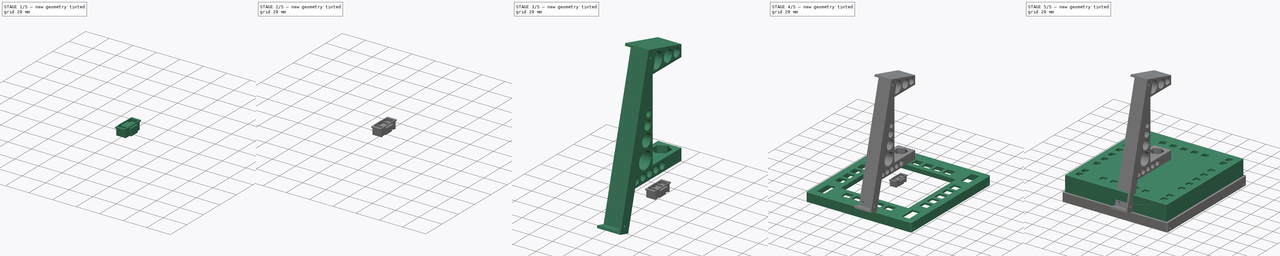
[diagram: build sequence overview — one tinted view per stage of 5, left to right]
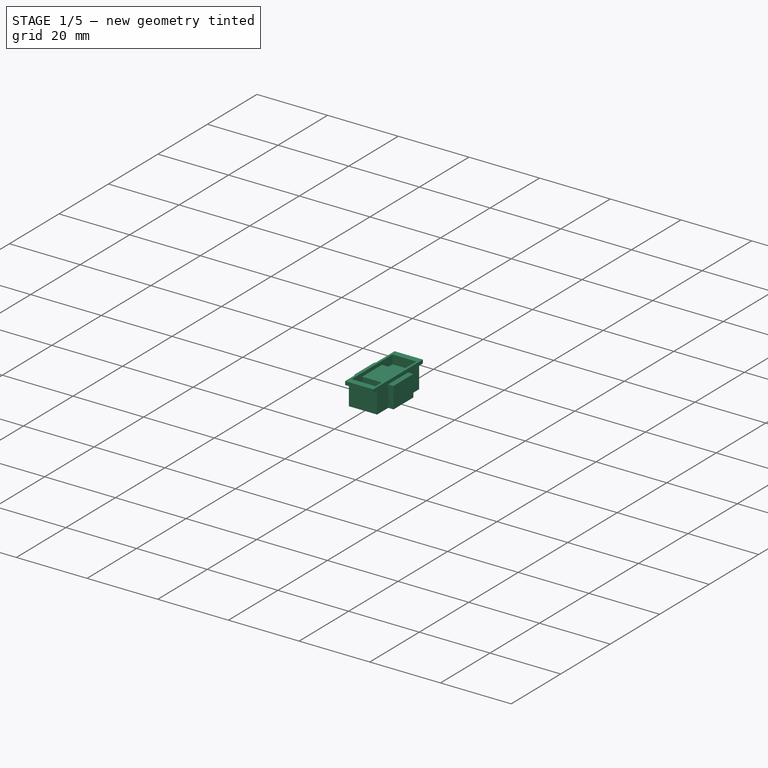
[diagram: stage 1 of 5 — iso view after this stage's code; geometry added in this stage tinted green]
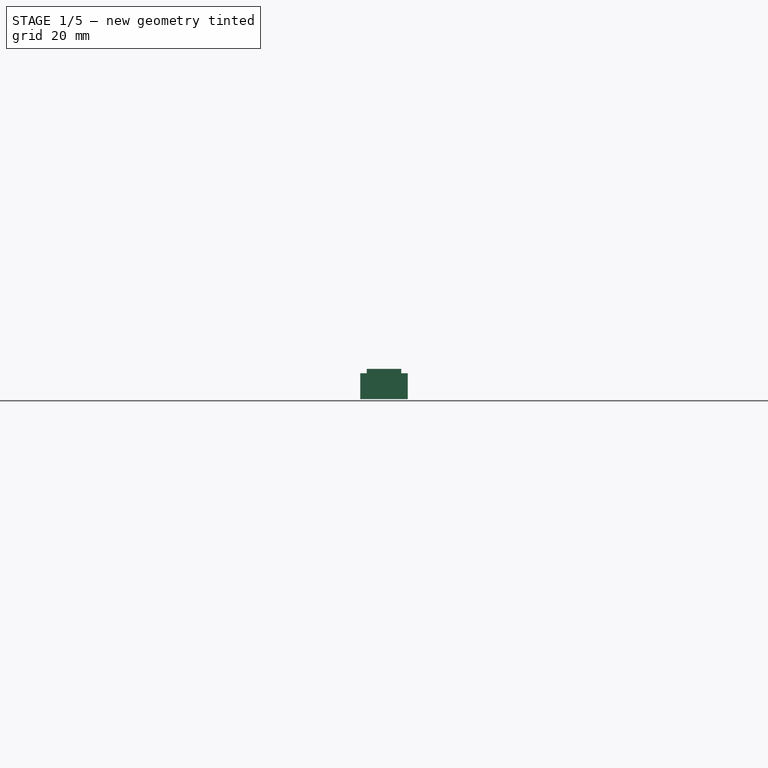
[diagram: stage 1 of 5 — front view after this stage's code; geometry added in this stage tinted green]
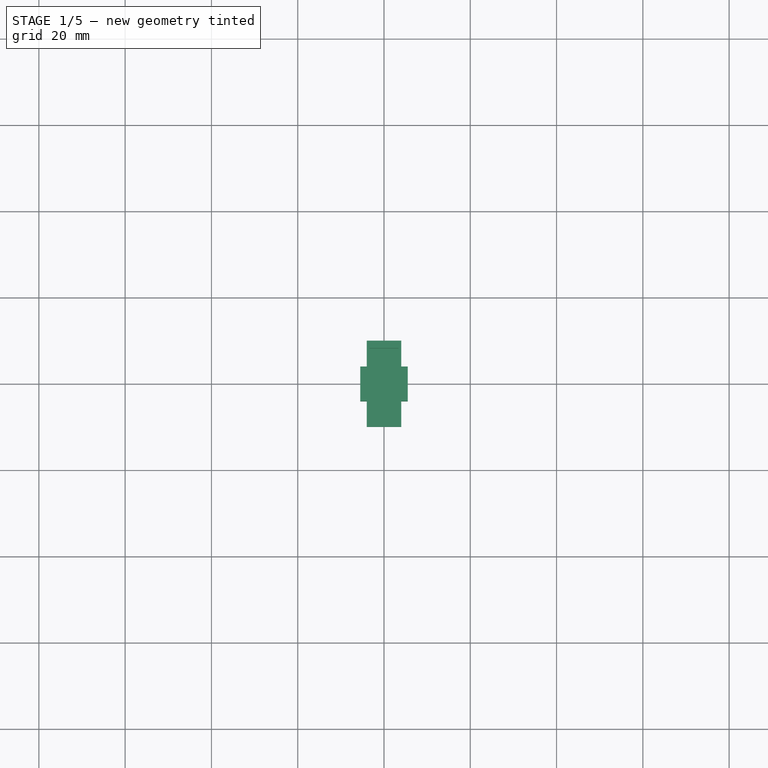
[diagram: stage 1 of 5 — top view after this stage's code; geometry added in this stage tinted green]
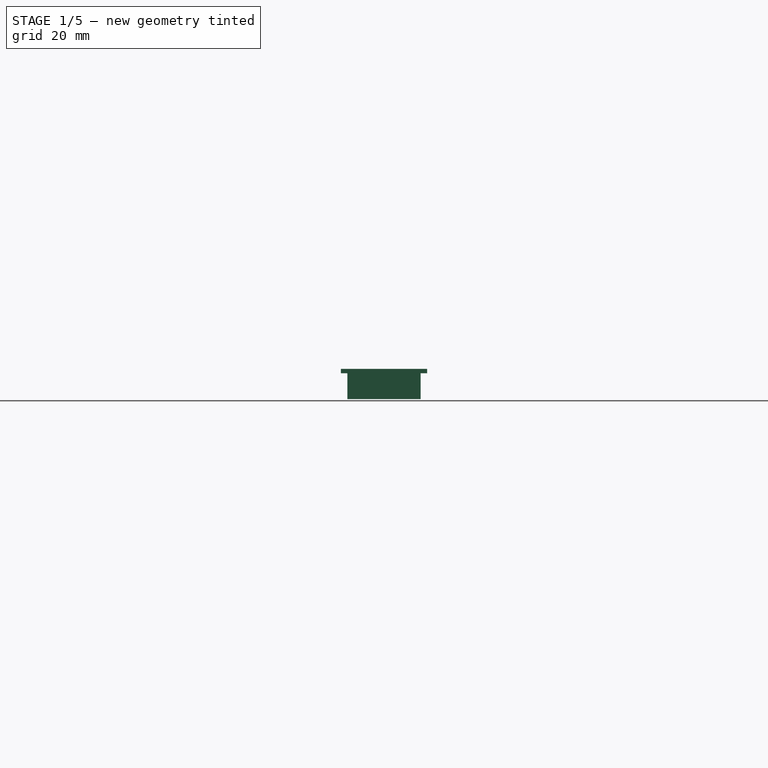
[diagram: stage 1 of 5 — right view after this stage's code; geometry added in this stage tinted green]
FCSTD DOCUMENT  (FreeCAD 0.20R29410 (Git))
Label: MFD.v2
License: All rights reserved
LicenseURL: http://en.wikipedia.org/wiki/All_rights_reserved
objects: Sketcher::SketchObject×33, PartDesign::Pocket×20, PartDesign::Pad×13, PartDesign::Body×8, Spreadsheet::Sheet×1, PartDesign::Fillet×1
note: 109 computed .brp shape members not serialized (recipe doc carries the construction recipe); baked Part::Feature solids carry a one-line shape summary decoded from their .brp

FEATURE [PartDesign::Body] Body013  label="Mount"
  Group = -> [Sketch035,Pad026,Sketch036,Pocket013,Sketch053,Pocket014,Sketch054,Pocket015,Sketch055,Pocket016,Sketch056,Pocket017]
  Origin = -> Origin013
  Placement = pos=(42.18,-49.6136,-67.2939) rot=(-1,0,0;1.309rad)
  Tip = -> Pocket017
FEATURE [Sketcher::SketchObject] Sketch059  label="Button.Rocker.Pad.Sketch"
  FullyConstrained = true
  MapMode = 5
  Support = -> [XY_Plane014]
  expr: Constraints[8] = Spreadsheet.ButtonWidth * 2.5 + 2 * Spreadsheet.Thickness + 4 * Spreadsheet.Tolerance
  expr: Constraints[9] = Spreadsheet.ButtonWidth + 4 * Spreadsheet.Tolerance + Spreadsheet.Thickness / 2
  sketch-geometry (4):
    g0: LineSegment StartX=-4 StartY=10 StartZ=0 EndX=4 EndY=10 EndZ=0
    g1: LineSegment StartX=4 StartY=10 StartZ=0 EndX=4 EndY=-10 EndZ=0
    g2: LineSegment StartX=4 StartY=-10 StartZ=0 EndX=-4 EndY=-10 EndZ=0
    g3: LineSegment StartX=-4 StartY=-10 StartZ=0 EndX=-4 EndY=10 EndZ=0
  constraints (11):
    c: Coincident(g0,g1)
    c: Coincident(g1,g2)
    c: Coincident(g2,g3)
    c: Coincident(g3,g0)
    c: Horizontal(g0)
    c: Horizontal(g2)
    c: Vertical(g1)
    c: Vertical(g3)
    c: DistanceY(g3,g3) = 20
    c: DistanceX(g2,g2) = 8
    c: Symmetric(g1,g0,g-1)
FEATURE [PartDesign::Pad] Pad040  label="Button.Rocker.Pad"
  Direction = (0,0,1)
  Length = 7
  Length2 = 10
  Profile = -> Sketch059
  ReferenceAxis = -> Sketch059 [N_Axis]
  Type = 0
  expr: Length = Spreadsheet.Thickness * 3 + 1
FEATURE [Sketcher::SketchObject] Sketch060  label="Button.Rocker.Pocket.Sketch"
  FullyConstrained = true
  MapMode = 5
  Placement = pos=(0,0,7) rot=(0,0,1;0rad)
  Support = -> [Pad040]
  expr: Constraints[10] = Spreadsheet.ButtonWidth * 2.5 + 6 * Spreadsheet.Tolerance
  expr: Constraints[9] = Spreadsheet.ButtonWidth + 3 * Spreadsheet.Tolerance
  sketch-geometry (4):
    g0: LineSegment StartX=-3.375 StartY=8.25 StartZ=0 EndX=3.375 EndY=8.25 EndZ=0
    g1: LineSegment StartX=3.375 StartY=8.25 StartZ=0 EndX=3.375 EndY=-8.25 EndZ=0
    g2: LineSegment StartX=3.375 StartY=-8.25 StartZ=0 EndX=-3.375 EndY=-8.25 EndZ=0
    g3: LineSegment StartX=-3.375 StartY=-8.25 StartZ=0 EndX=-3.375 EndY=8.25 EndZ=0
  constraints (11):
    c: Coincident(g0,g1)
    c: Coincident(g1,g2)
    c: Coincident(g2,g3)
    c: Coincident(g3,g0)
    c: Horizontal(g0)
    c: Horizontal(g2)
    c: Vertical(g1)
    c: Vertical(g3)
    c: Symmetric(g0,g1,g-1)
    c: DistanceX(g0,g0) = 6.75
    c: DistanceY(g1,g1) = 16.5
FEATURE [PartDesign::Pocket] Pocket018  label="Button.Rocker.Pocket"
  BaseFeature = -> Pad040
  Direction = (0,0,-1)
  Length = 2.5
  Length2 = 5
  Profile = -> Sketch060
  ReferenceAxis = -> Sketch060 [N_Axis]
  Type = 0
FEATURE [Sketcher::SketchObject] Sketch061  label="Button.Rocker.SupportPocket.Sketch"
  FullyConstrained = true
  MapMode = 5
  Placement = pos=(0,0,0) rot=(1,0,0;3.14159rad)
  Support = -> [Pocket018]
  expr: Constraints[18] = Spreadsheet.ButtonWidth + 4 * Spreadsheet.Tolerance + Spreadsheet.Thickness / 2
  expr: Constraints[19] = Spreadsheet.ButtonWidth + 4 * Spreadsheet.Tolerance + Spreadsheet.Thickness / 2 + Spreadsheet.Thickness
  expr: Constraints[20] = Spreadsheet.ButtonWidth * 2.5 + 2 * Spreadsheet.Thickness + 4 * Spreadsheet.Tolerance
  expr: Constraints[21] = Spreadsheet.ButtonWidth * 2.5 + 4 * Spreadsheet.Tolerance + Spreadsheet.Thickness / 2
  sketch-geometry (8):
    g0: LineSegment StartX=-4 StartY=8.5 StartZ=0 EndX=4 EndY=8.5 EndZ=0
    g1: LineSegment StartX=4 StartY=8.5 StartZ=0 EndX=4 EndY=-8.5 EndZ=0
    g2: LineSegment StartX=4 StartY=-8.5 StartZ=0 EndX=-4 EndY=-8.5 EndZ=0
    g3: LineSegment StartX=-4 StartY=-8.5 StartZ=0 EndX=-4 EndY=8.5 EndZ=0
    g4: LineSegment StartX=-5 StartY=10 StartZ=0 EndX=5 EndY=10 EndZ=0
    g5: LineSegment StartX=5 StartY=10 StartZ=0 EndX=5 EndY=-10 EndZ=0
    g6: LineSegment StartX=5 StartY=-10 StartZ=0 EndX=-5 EndY=-10 EndZ=0
    g7: LineSegment StartX=-5 StartY=-10 StartZ=0 EndX=-5 EndY=10 EndZ=0
  constraints (22):
    c: Coincident(g0,g1)
    c: Coincident(g1,g2)
    c: Coincident(g2,g3)
    c: Coincident(g3,g0)
    c: Horizontal(g0)
    c: Horizontal(g2)
    c: Vertical(g1)
    c: Vertical(g3)
    c: Coincident(g4,g5)
    c: Coincident(g5,g6)
    c: Coincident(g6,g7)
    c: Coincident(g7,g4)
    c: Horizontal(g4)
    c: Horizontal(g6)
    c: Vertical(g5)
    c: Vertical(g7)
    c: Symmetric(g4,g5,g-1)
    c: Symmetric(g0,g1,g-1)
    c: DistanceX(g0,g0) = 8
    c: DistanceX(g4,g4) = 10
    c: DistanceY(g5,g5) = 20
    c: DistanceY(g1,g1) = 17
FEATURE [PartDesign::Pocket] Pocket019  label="Button.Rocker.SupportPocket"
  BaseFeature = -> Pocket018
  Direction = (0,0,1)
  Length = 6
  Length2 = 5
  Profile = -> Sketch061
  ReferenceAxis = -> Sketch061 [N_Axis]
  Type = 0
  expr: Length = Spreadsheet.Thickness * 3
FEATURE [PartDesign::Body] Body019  label="Button"
  Group = -> [Sketch066,Pad042,Sketch067,Pocket021,Sketch065,Pocket022]
  Origin = -> Origin019
  Placement = pos=(-50.01,-12.63,26.07) rot=(0.707107,0.707107,0;3.14159rad)
  Tip = -> Pocket022
FEATURE [Sketcher::SketchObject] Sketch069  label="Button.Center.Pad.Sketch"
  FullyConstrained = true
  MapMode = 5
  Support = -> [XY_Plane020]
  expr: Constraints[10] = Spreadsheet.ButtonWidth + 4 * Spreadsheet.Tolerance + Spreadsheet.Thickness / 2
  expr: Constraints[9] = Spreadsheet.ButtonWidth + 2 * +Spreadsheet.Thickness + 4 * Spreadsheet.Tolerance
  sketch-geometry (4):
    g0: LineSegment StartX=-5.5 StartY=4 StartZ=0 EndX=5.5 EndY=4 EndZ=0
    g1: LineSegment StartX=5.5 StartY=4 StartZ=0 EndX=5.5 EndY=-4 EndZ=0
    g2: LineSegment StartX=5.5 StartY=-4 StartZ=0 EndX=-5.5 EndY=-4 EndZ=0
    g3: LineSegment StartX=-5.5 StartY=-4 StartZ=0 EndX=-5.5 EndY=4 EndZ=0
  constraints (11):
    c: Coincident(g0,g1)
    c: Coincident(g1,g2)
    c: Coincident(g2,g3)
    c: Coincident(g3,g0)
    c: Horizontal(g0)
    c: Horizontal(g2)
    c: Vertical(g1)
    c: Vertical(g3)
    c: Symmetric(g0,g2,g-1)
    c: DistanceX(g0,g0) = 11
    c: DistanceY(g3,g3) = 8
FEATURE [PartDesign::Pad] Pad043  label="Button.Center.Pad"
  Direction = (0,0,1)
  Length = 6
  Length2 = 10
  Profile = -> Sketch069
  ReferenceAxis = -> Sketch069 [N_Axis]
  Type = 0
  expr: Length = Spreadsheet.Thickness * 3
FEATURE [PartDesign::Body] Body014  label="Button.Rocker"
  Group = -> [Sketch059,Pad040,Sketch060,Pocket018,Sketch061,Pocket019,Sketch072,Pocket025]
  Origin = -> Origin014
  Placement = pos=(-50.1,-49.54,26.61) rot=(0,1,0;3.14159rad)
  Tip = -> Pocket025
FEATURE [Sketcher::SketchObject] Sketch074  label="Button.Edge.Pad.Sketch"
  FullyConstrained = true
  MapMode = 5
  Support = -> [XY_Plane021]
  expr: Constraints[10] = Spreadsheet.ButtonWidth + 4 * Spreadsheet.Tolerance + Spreadsheet.Thickness / 2
  expr: Constraints[9] = Spreadsheet.ButtonWidth + 2 * +Spreadsheet.Thickness + 4 * Spreadsheet.Tolerance
  sketch-geometry (4):
    g0: LineSegment StartX=-5.5 StartY=4 StartZ=0 EndX=5.5 EndY=4 EndZ=0
    g1: LineSegment StartX=5.5 StartY=4 StartZ=0 EndX=5.5 EndY=-4 EndZ=0
    g2: LineSegment StartX=5.5 StartY=-4 StartZ=0 EndX=-5.5 EndY=-4 EndZ=0
    g3: LineSegment StartX=-5.5 StartY=-4 StartZ=0 EndX=-5.5 EndY=4 EndZ=0
  constraints (11):
    c: Coincident(g0,g1)
    c: Coincident(g1,g2)
    c: Coincident(g2,g3)
    c: Coincident(g3,g0)
    c: Horizontal(g0)
    c: Horizontal(g2)
    c: Vertical(g1)
    c: Vertical(g3)
    c: Symmetric(g0,g2,g-1)
    c: DistanceX(g0,g0) = 11
    c: DistanceY(g3,g3) = 8
FEATURE [PartDesign::Pad] Pad045  label="Button.Edge.Pad"
  Direction = (0,0,1)
  Length = 6
  Length2 = 10
  Profile = -> Sketch074
  ReferenceAxis = -> Sketch074 [N_Axis]
  Type = 0
  expr: Length = Spreadsheet.Thickness * 3
FEATURE [Sketcher::SketchObject] Sketch075  label="Button.Edge.Pocket.Sketch"
  FullyConstrained = true
  MapMode = 5
  Placement = pos=(0,0,6) rot=(0,0,1;0rad)
  Support = -> [Pad045]
  expr: Constraints[10] = Spreadsheet.ButtonWidth + 3 * Spreadsheet.Tolerance
  sketch-geometry (4):
    g0: LineSegment StartX=-3.375 StartY=3.375 StartZ=0 EndX=3.375 EndY=3.375 EndZ=0
    g1: LineSegment StartX=3.375 StartY=3.375 StartZ=0 EndX=3.375 EndY=-3.375 EndZ=0
    g2: LineSegment StartX=3.375 StartY=-3.375 StartZ=0 EndX=-3.375 EndY=-3.375 EndZ=0
    g3: LineSegment StartX=-3.375 StartY=-3.375 StartZ=0 EndX=-3.375 EndY=3.375 EndZ=0
  constraints (11):
    c: Coincident(g0,g1)
    c: Coincident(g1,g2)
    c: Coincident(g2,g3)
    c: Coincident(g3,g0)
    c: Horizontal(g0)
    c: Horizontal(g2)
    c: Vertical(g1)
    c: Vertical(g3)
    c: Symmetric(g0,g2,g-1)
    c: Equal(g3,g0)
    c: DistanceX(g0,g0) = 6.75
FEATURE [PartDesign::Pocket] Pocket027  label="Button.Edge.Pocket"
  BaseFeature = -> Pad045
  Direction = (0,0,-1)
  Length = 2.5
  Length2 = 5
  Profile = -> Sketch075
  ReferenceAxis = -> Sketch075 [N_Axis]
  Type = 0
FEATURE [Sketcher::SketchObject] Sketch073  label="Button.Edge.SupportPocket.Pocket.Sketch"
  FullyConstrained = true
  MapMode = 5
  Placement = pos=(0,0,0) rot=(1,0,0;3.14159rad)
  Support = -> [Pocket027]
  expr: Constraints[21] = Spreadsheet.ButtonWidth + 4 * Spreadsheet.Tolerance + Spreadsheet.Thickness / 2
  expr: Constraints[9] = Spreadsheet.ButtonWidth + 2 * Spreadsheet.Thickness + 4 * Spreadsheet.Tolerance
  sketch-geometry (8):
    g0: LineSegment StartX=-5.5 StartY=5.5 StartZ=0 EndX=5.5 EndY=5.5 EndZ=0
    g1: LineSegment StartX=5.5 StartY=5.5 StartZ=0 EndX=5.5 EndY=-5.5 EndZ=0
    g2: LineSegment StartX=5.5 StartY=-5.5 StartZ=0 EndX=-5.5 EndY=-5.5 EndZ=0
    g3: LineSegment StartX=-5.5 StartY=-5.5 StartZ=0 EndX=-5.5 EndY=5.5 EndZ=0
    g4: LineSegment StartX=-4 StartY=4 StartZ=0 EndX=4 EndY=4 EndZ=0
    g5: LineSegment StartX=4 StartY=4 StartZ=0 EndX=4 EndY=-4 EndZ=0
    g6: LineSegment StartX=4 StartY=-4 StartZ=0 EndX=-4 EndY=-4 EndZ=0
    g7: LineSegment StartX=-4 StartY=-4 StartZ=0 EndX=-4 EndY=4 EndZ=0
  constraints (22):
    c: Coincident(g0,g1)
    c: Coincident(g1,g2)
    c: Coincident(g2,g3)
    c: Coincident(g3,g0)
    c: Horizontal(g0)
    c: Horizontal(g2)
    c: Vertical(g1)
    c: Vertical(g3)
    c: Symmetric(g0,g2,g-1)
    c: DistanceX(g0,g0) = 11
    c: Equal(g3,g0)
    c: Coincident(g4,g5)
    c: Coincident(g5,g6)
    c: Coincident(g6,g7)
    c: Coincident(g7,g4)
    c: Horizontal(g4)
    c: Horizontal(g6)
    c: Vertical(g5)
    c: Vertical(g7)
    c: Equal(g7,g4)
    c: Symmetric(g4,g5,g-1)
    c: DistanceX(g4,g4) = 8
FEATURE [PartDesign::Pocket] Pocket028  label="Button.Edge.SupportPocket.Pocket"
  BaseFeature = -> Pocket027
  Direction = (0,0,1)
  Length = 5
  Length2 = 5
  Profile = -> Sketch073
  ReferenceAxis = -> Sketch073 [N_Axis]
  Type = 0
  expr: Length = Spreadsheet.Thickness * 3 - 1
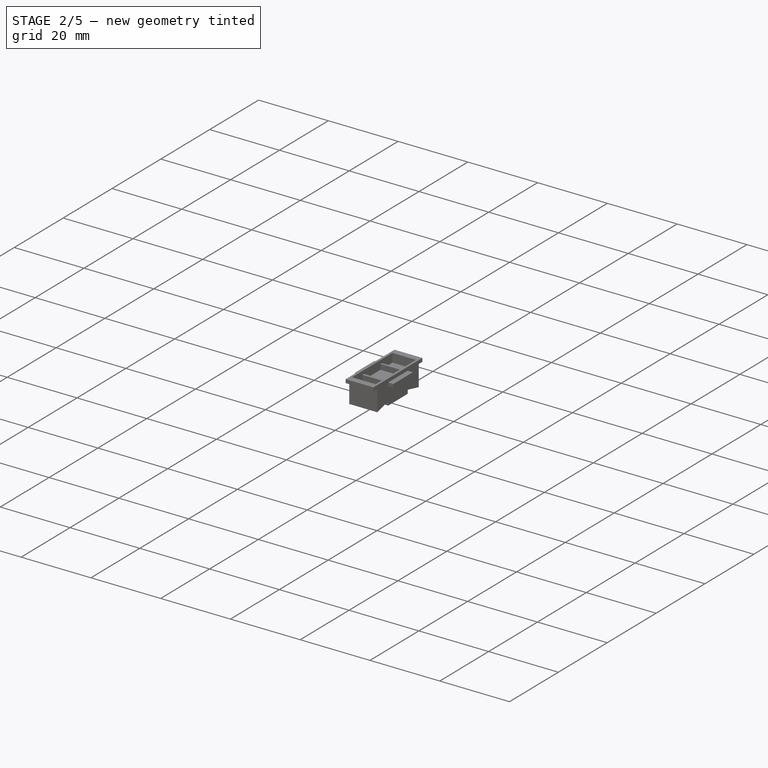
[diagram: stage 2 of 5 — iso view after this stage's code; geometry added in this stage tinted green]
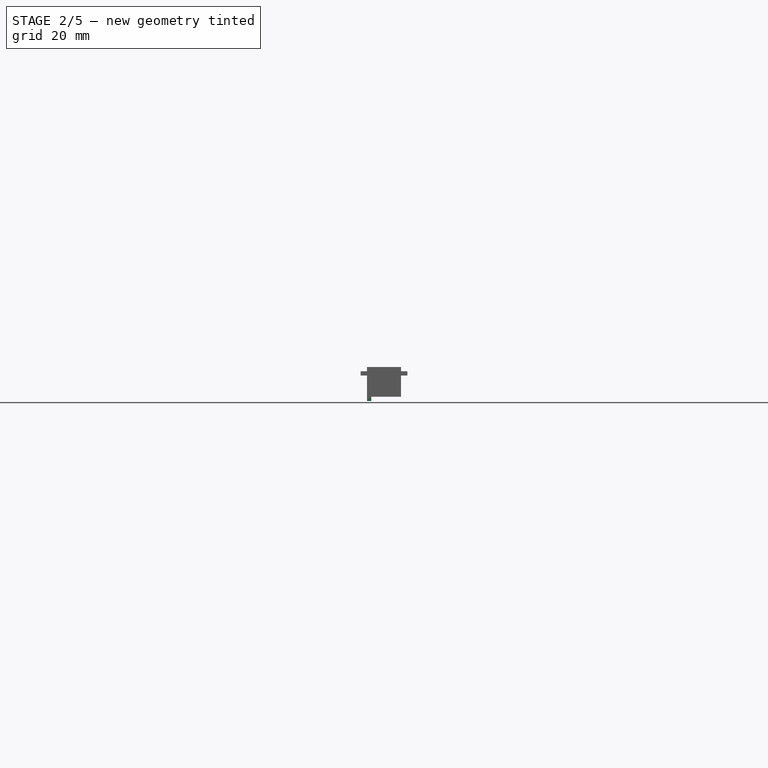
[diagram: stage 2 of 5 — front view after this stage's code; geometry added in this stage tinted green]
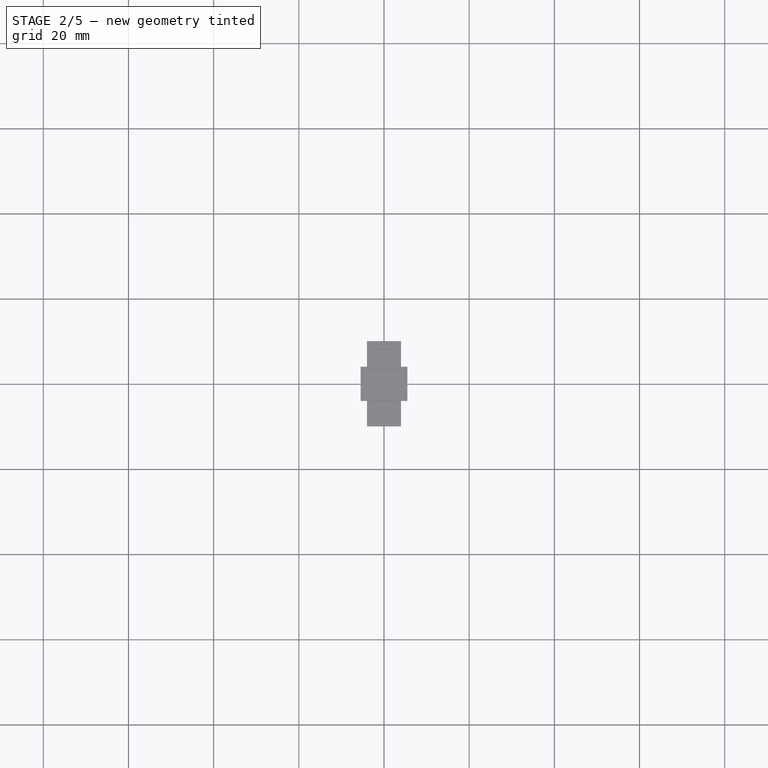
[diagram: stage 2 of 5 — top view after this stage's code; geometry added in this stage tinted green]
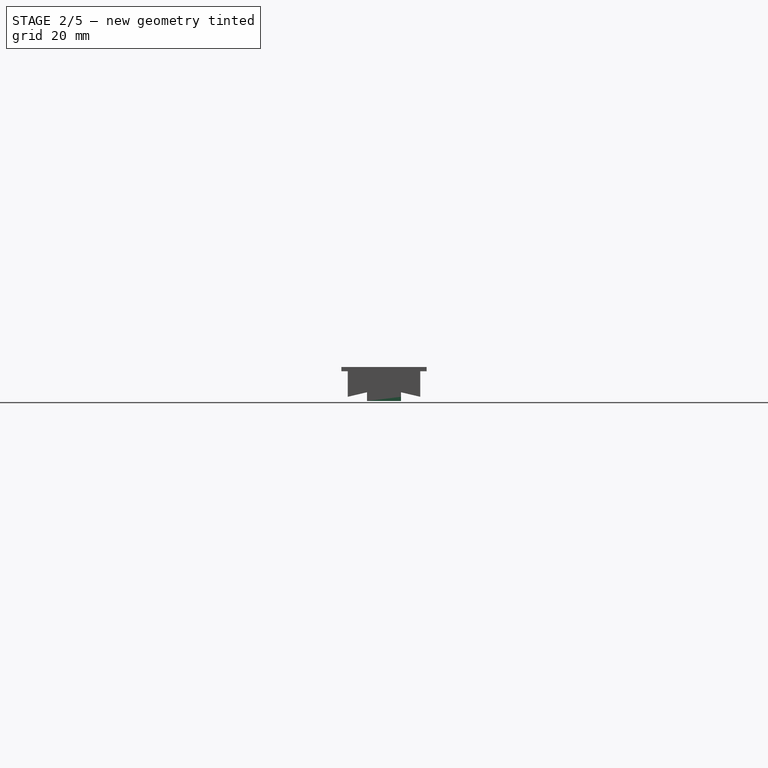
[diagram: stage 2 of 5 — right view after this stage's code; geometry added in this stage tinted green]
FEATURE [Sketcher::SketchObject] Sketch066  label="Button.Pad.Sketch"
  FullyConstrained = true
  MapMode = 5
  Support = -> [XY_Plane019]
  expr: Constraints[10] = Spreadsheet.ButtonWidth + 4 * Spreadsheet.Tolerance + Spreadsheet.Thickness / 2
  expr: Constraints[9] = Spreadsheet.ButtonWidth + 2 * +Spreadsheet.Thickness + 4 * Spreadsheet.Tolerance
  sketch-geometry (4):
    g0: LineSegment StartX=-5.5 StartY=4 StartZ=0 EndX=5.5 EndY=4 EndZ=0
    g1: LineSegment StartX=5.5 StartY=4 StartZ=0 EndX=5.5 EndY=-4 EndZ=0
    g2: LineSegment StartX=5.5 StartY=-4 StartZ=0 EndX=-5.5 EndY=-4 EndZ=0
    g3: LineSegment StartX=-5.5 StartY=-4 StartZ=0 EndX=-5.5 EndY=4 EndZ=0
  constraints (11):
    c: Coincident(g0,g1)
    c: Coincident(g1,g2)
    c: Coincident(g2,g3)
    c: Coincident(g3,g0)
    c: Horizontal(g0)
    c: Horizontal(g2)
    c: Vertical(g1)
    c: Vertical(g3)
    c: Symmetric(g0,g2,g-1)
    c: DistanceX(g0,g0) = 11
    c: DistanceY(g3,g3) = 8
FEATURE [PartDesign::Pad] Pad042  label="Button.Pad"
  Direction = (0,0,1)
  Length = 6
  Length2 = 10
  Profile = -> Sketch066
  ReferenceAxis = -> Sketch066 [N_Axis]
  Type = 0
  expr: Length = Spreadsheet.Thickness * 3
FEATURE [Sketcher::SketchObject] Sketch067  label="Button.Pocket.Sketch"
  FullyConstrained = true
  MapMode = 5
  Placement = pos=(0,0,6) rot=(0,0,1;0rad)
  Support = -> [Pad042]
  expr: Constraints[10] = Spreadsheet.ButtonWidth + 3 * Spreadsheet.Tolerance
  sketch-geometry (4):
    g0: LineSegment StartX=-3.375 StartY=3.375 StartZ=0 EndX=3.375 EndY=3.375 EndZ=0
    g1: LineSegment StartX=3.375 StartY=3.375 StartZ=0 EndX=3.375 EndY=-3.375 EndZ=0
    g2: LineSegment StartX=3.375 StartY=-3.375 StartZ=0 EndX=-3.375 EndY=-3.375 EndZ=0
    g3: LineSegment StartX=-3.375 StartY=-3.375 StartZ=0 EndX=-3.375 EndY=3.375 EndZ=0
  constraints (11):
    c: Coincident(g0,g1)
    c: Coincident(g1,g2)
    c: Coincident(g2,g3)
    c: Coincident(g3,g0)
    c: Horizontal(g0)
    c: Horizontal(g2)
    c: Vertical(g1)
    c: Vertical(g3)
    c: Symmetric(g0,g2,g-1)
    c: Equal(g3,g0)
    c: DistanceX(g0,g0) = 6.75
FEATURE [PartDesign::Pocket] Pocket021  label="Button.Pocket"
  BaseFeature = -> Pad042
  Direction = (0,0,-1)
  Length = 2.5
  Length2 = 5
  Profile = -> Sketch067
  ReferenceAxis = -> Sketch067 [N_Axis]
  Type = 0
FEATURE [Sketcher::SketchObject] Sketch065  label="Button.SupportPocket.Pocket.Sketch"
  FullyConstrained = true
  MapMode = 5
  Placement = pos=(0,0,0) rot=(1,0,0;3.14159rad)
  Support = -> [Pocket021]
  expr: Constraints[21] = Spreadsheet.ButtonWidth + 4 * Spreadsheet.Tolerance + Spreadsheet.Thickness / 2
  expr: Constraints[9] = Spreadsheet.ButtonWidth + 2 * Spreadsheet.Thickness + 4 * Spreadsheet.Tolerance
  sketch-geometry (8):
    g0: LineSegment StartX=-5.5 StartY=5.5 StartZ=0 EndX=5.5 EndY=5.5 EndZ=0
    g1: LineSegment StartX=5.5 StartY=5.5 StartZ=0 EndX=5.5 EndY=-5.5 EndZ=0
    g2: LineSegment StartX=5.5 StartY=-5.5 StartZ=0 EndX=-5.5 EndY=-5.5 EndZ=0
    g3: LineSegment StartX=-5.5 StartY=-5.5 StartZ=0 EndX=-5.5 EndY=5.5 EndZ=0
    g4: LineSegment StartX=-4 StartY=4 StartZ=0 EndX=4 EndY=4 EndZ=0
    g5: LineSegment StartX=4 StartY=4 StartZ=0 EndX=4 EndY=-4 EndZ=0
    g6: LineSegment StartX=4 StartY=-4 StartZ=0 EndX=-4 EndY=-4 EndZ=0
    g7: LineSegment StartX=-4 StartY=-4 StartZ=0 EndX=-4 EndY=4 EndZ=0
  constraints (22):
    c: Coincident(g0,g1)
    c: Coincident(g1,g2)
    c: Coincident(g2,g3)
    c: Coincident(g3,g0)
    c: Horizontal(g0)
    c: Horizontal(g2)
    c: Vertical(g1)
    c: Vertical(g3)
    c: Symmetric(g0,g2,g-1)
    c: DistanceX(g0,g0) = 11
    c: Equal(g3,g0)
    c: Coincident(g4,g5)
    c: Coincident(g5,g6)
    c: Coincident(g6,g7)
    c: Coincident(g7,g4)
    c: Horizontal(g4)
    c: Horizontal(g6)
    c: Vertical(g5)
    c: Vertical(g7)
    c: Equal(g7,g4)
    c: Symmetric(g4,g5,g-1)
    c: DistanceX(g4,g4) = 8
FEATURE [PartDesign::Pocket] Pocket022  label="Button.SupportPocket.Pocket"
  BaseFeature = -> Pocket021
  Direction = (0,0,1)
  Length = 5
  Length2 = 5
  Profile = -> Sketch065
  ReferenceAxis = -> Sketch065 [N_Axis]
  Type = 0
  expr: Length = Spreadsheet.Thickness * 3 - 1
FEATURE [Sketcher::SketchObject] Sketch070  label="Button.Center.Pocket.Sketch"
  FullyConstrained = true
  MapMode = 5
  Placement = pos=(0,0,6) rot=(0,0,1;0rad)
  Support = -> [Pad043]
  expr: Constraints[10] = Spreadsheet.ButtonWidth + 3 * Spreadsheet.Tolerance
  sketch-geometry (4):
    g0: LineSegment StartX=-3.375 StartY=3.375 StartZ=0 EndX=3.375 EndY=3.375 EndZ=0
    g1: LineSegment StartX=3.375 StartY=3.375 StartZ=0 EndX=3.375 EndY=-3.375 EndZ=0
    g2: LineSegment StartX=3.375 StartY=-3.375 StartZ=0 EndX=-3.375 EndY=-3.375 EndZ=0
    g3: LineSegment StartX=-3.375 StartY=-3.375 StartZ=0 EndX=-3.375 EndY=3.375 EndZ=0
  constraints (11):
    c: Coincident(g0,g1)
    c: Coincident(g1,g2)
    c: Coincident(g2,g3)
    c: Coincident(g3,g0)
    c: Horizontal(g0)
    c: Horizontal(g2)
    c: Vertical(g1)
    c: Vertical(g3)
    c: Symmetric(g0,g2,g-1)
    c: Equal(g3,g0)
    c: DistanceX(g0,g0) = 6.75
FEATURE [PartDesign::Pocket] Pocket023  label="Button.Center.Pocket"
  BaseFeature = -> Pad043
  Direction = (0,0,-1)
  Length = 2.5
  Length2 = 5
  Profile = -> Sketch070
  ReferenceAxis = -> Sketch070 [N_Axis]
  Type = 0
FEATURE [Sketcher::SketchObject] Sketch068  label="Button.Center.SupportPocket.Pocket.Sketch"
  FullyConstrained = true
  MapMode = 5
  Placement = pos=(0,0,0) rot=(1,0,0;3.14159rad)
  Support = -> [Pocket023]
  expr: Constraints[21] = Spreadsheet.ButtonWidth + 4 * Spreadsheet.Tolerance + Spreadsheet.Thickness / 2
  expr: Constraints[9] = Spreadsheet.ButtonWidth + 2 * Spreadsheet.Thickness + 4 * Spreadsheet.Tolerance
  sketch-geometry (8):
    g0: LineSegment StartX=-5.5 StartY=5.5 StartZ=0 EndX=5.5 EndY=5.5 EndZ=0
    g1: LineSegment StartX=5.5 StartY=5.5 StartZ=0 EndX=5.5 EndY=-5.5 EndZ=0
    g2: LineSegment StartX=5.5 StartY=-5.5 StartZ=0 EndX=-5.5 EndY=-5.5 EndZ=0
    g3: LineSegment StartX=-5.5 StartY=-5.5 StartZ=0 EndX=-5.5 EndY=5.5 EndZ=0
    g4: LineSegment StartX=-4 StartY=4 StartZ=0 EndX=4 EndY=4 EndZ=0
    g5: LineSegment StartX=4 StartY=4 StartZ=0 EndX=4 EndY=-4 EndZ=0
    g6: LineSegment StartX=4 StartY=-4 StartZ=0 EndX=-4 EndY=-4 EndZ=0
    g7: LineSegment StartX=-4 StartY=-4 StartZ=0 EndX=-4 EndY=4 EndZ=0
  constraints (22):
    c: Coincident(g0,g1)
    c: Coincident(g1,g2)
    c: Coincident(g2,g3)
    c: Coincident(g3,g0)
    c: Horizontal(g0)
    c: Horizontal(g2)
    c: Vertical(g1)
    c: Vertical(g3)
    c: Symmetric(g0,g2,g-1)
    c: DistanceX(g0,g0) = 11
    c: Equal(g3,g0)
    c: Coincident(g4,g5)
    c: Coincident(g5,g6)
    c: Coincident(g6,g7)
    c: Coincident(g7,g4)
    c: Horizontal(g4)
    c: Horizontal(g6)
    c: Vertical(g5)
    c: Vertical(g7)
    c: Equal(g7,g4)
    c: Symmetric(g4,g5,g-1)
    c: DistanceX(g4,g4) = 8
FEATURE [PartDesign::Pocket] Pocket024  label="Button.Center.SupportPocket.Pocket"
  BaseFeature = -> Pocket023
  Direction = (0,0,1)
  Length = 5
  Length2 = 5
  Profile = -> Sketch068
  ReferenceAxis = -> Sketch068 [N_Axis]
  Type = 0
  expr: Length = Spreadsheet.Thickness * 3 - 1
FEATURE [PartDesign::Body] Body020  label="Button.Center"
  Group = -> [Sketch069,Pad043,Sketch070,Pocket023,Sketch068,Pocket024,Sketch071,Pad044]
  Origin = -> Origin020
  Placement = pos=(-49.93,0.13,26.46) rot=(0.707107,0.707107,0;3.14159rad)
  Tip = -> Pad044
FEATURE [Sketcher::SketchObject] Sketch072  label="Button.Rocker.RockerPocket.Sketch"
  ExternalGeometry = -> [Pocket019]
  FullyConstrained = true
  MapMode = 5
  Placement = pos=(-4,0,0) rot=(0.57735,-0.57735,-0.57735;2.0944rad)
  Support = -> [Pocket019]
  expr: Constraints[6] = 2
  sketch-geometry (3):
    g0: LineSegment StartX=-8.5 StartY=0 StartZ=0 EndX=0 EndY=2 EndZ=0
    g1: LineSegment StartX=0 StartY=2 StartZ=0 EndX=8.5 EndY=0 EndZ=0
    g2: LineSegment StartX=8.5 StartY=0 StartZ=0 EndX=-8.5 EndY=0 EndZ=0
  constraints (7):
    c: Coincident(g-3,g0)
    c: PointOnObject(g0,g-2)
    c: Coincident(g0,g1)
    c: Coincident(g1,g-3)
    c: Coincident(g1,g2)
    c: Coincident(g2,g0)
    c: DistanceY(g-1,g0) = 2
FEATURE [PartDesign::Pocket] Pocket025  label="Button.Rocker.RockerPocket"
  BaseFeature = -> Pocket019
  Direction = (1,0,0)
  Length = 10
  Length2 = 5
  Profile = -> Sketch072
  ReferenceAxis = -> Sketch072 [N_Axis]
  Type = 0
FEATURE [Sketcher::SketchObject] Sketch076  label="Button.Edge.Tactile.Pad.Sketch"
  ExternalGeometry = -> [Pocket028]
  FullyConstrained = true
  MapMode = 5
  Placement = pos=(0,0,0) rot=(1,0,0;3.14159rad)
  Support = -> [Pocket028]
  sketch-geometry (4):
    g0: LineSegment StartX=-4 StartY=4 StartZ=0 EndX=-3 EndY=4 EndZ=0
    g1: LineSegment StartX=-3 StartY=4 StartZ=0 EndX=-3 EndY=-4 EndZ=0
    g2: LineSegment StartX=-3 StartY=-4 StartZ=0 EndX=-4 EndY=-4 EndZ=0
    g3: LineSegment StartX=-4 StartY=-4 StartZ=0 EndX=-4 EndY=4 EndZ=0
  constraints (11):
    c: Coincident(g0,g1)
    c: Coincident(g1,g2)
    c: Coincident(g2,g3)
    c: Coincident(g3,g0)
    c: Horizontal(g0)
    c: Horizontal(g2)
    c: Vertical(g1)
    c: Vertical(g3)
    c: Coincident(g2,g-3)
    c: Equal(g3,g-4)
    c: DistanceX(g0,g0) = 1
FEATURE [PartDesign::Pad] Pad046  label="Button.Edge.Tactile.Pad"
  BaseFeature = -> Pocket028
  Direction = (0,0,-1)
  Length = 1
  Length2 = 10
  Profile = -> Sketch076
  ReferenceAxis = -> Sketch076 [N_Axis]
  Type = 0
FEATURE [PartDesign::Body] Body021  label="Button.Edge"
  Group = -> [Sketch074,Pad045,Sketch075,Pocket027,Sketch073,Pocket028,Sketch076,Pad046]
  Origin = -> Origin021
  Placement = pos=(-50.06,-24.45,25.96) rot=(0.707107,0.707107,0;3.14159rad)
  Tip = -> Pad046
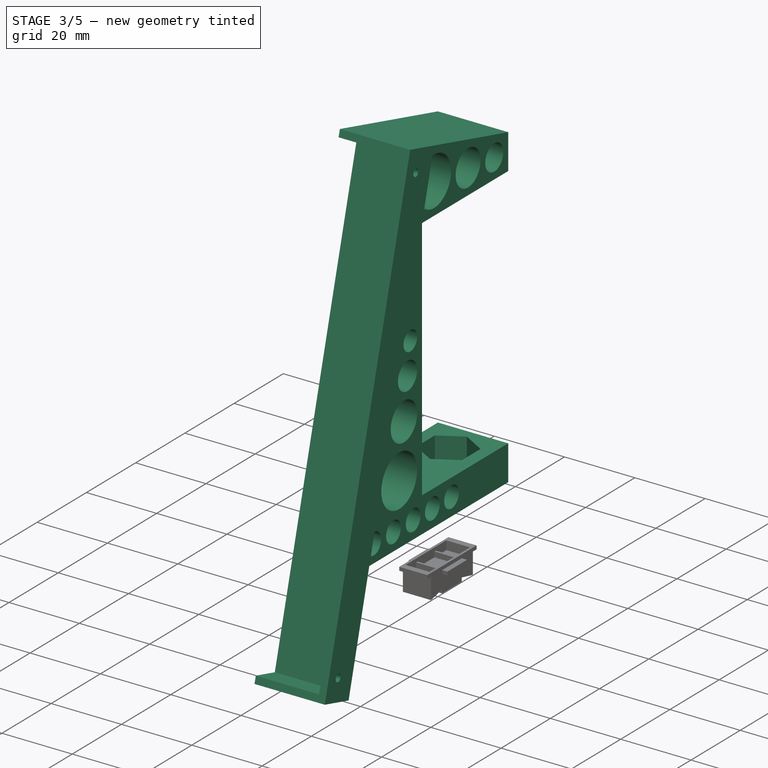
[diagram: stage 3 of 5 — iso view after this stage's code; geometry added in this stage tinted green]
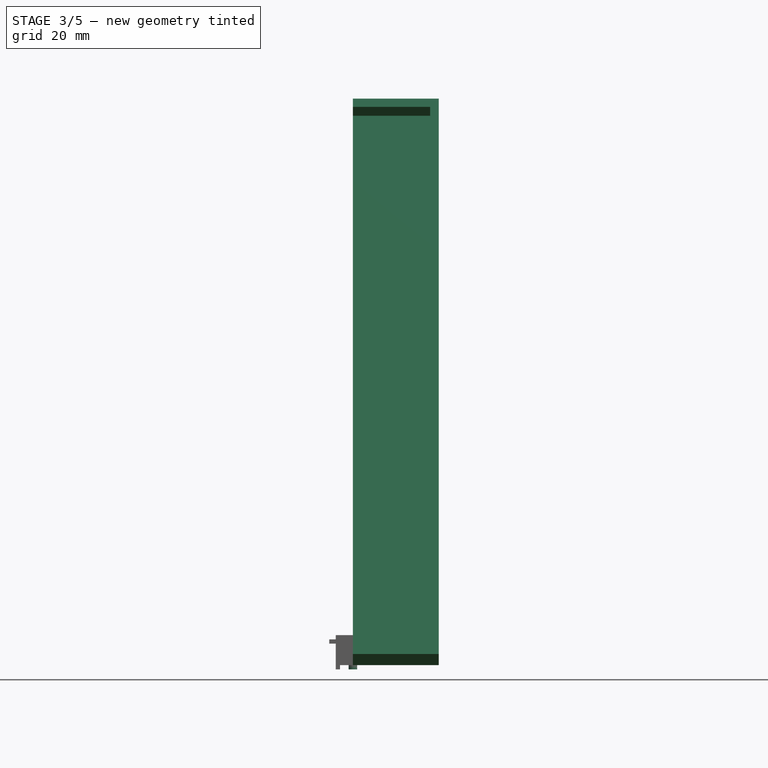
[diagram: stage 3 of 5 — front view after this stage's code; geometry added in this stage tinted green]
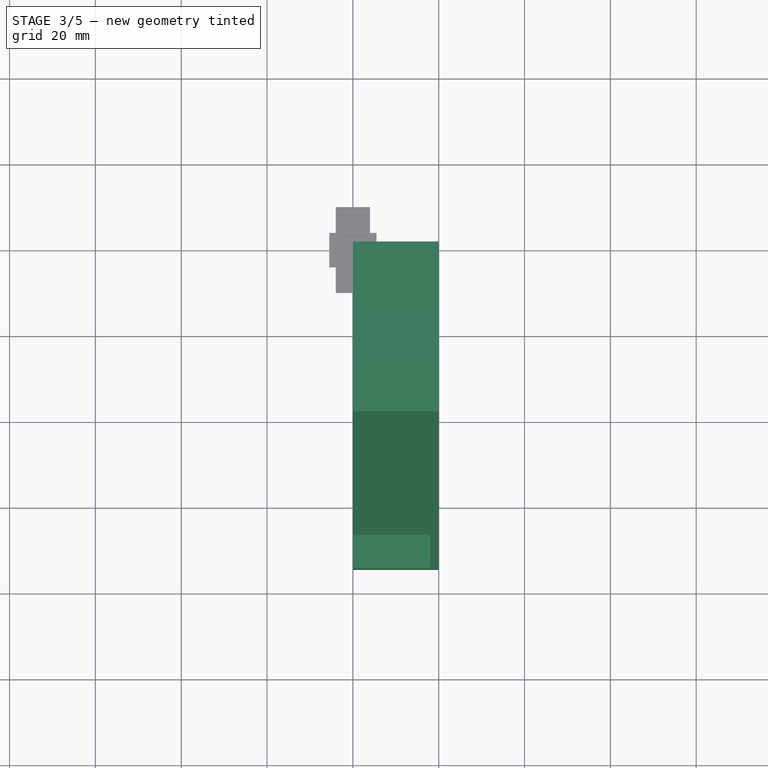
[diagram: stage 3 of 5 — top view after this stage's code; geometry added in this stage tinted green]
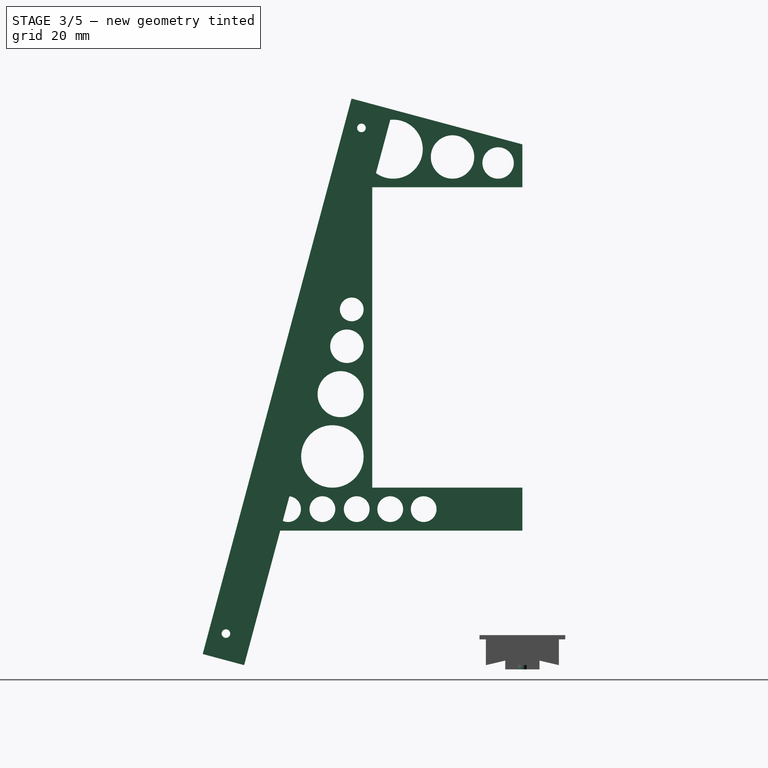
[diagram: stage 3 of 5 — right view after this stage's code; geometry added in this stage tinted green]
FEATURE [PartDesign::Body] Body002  label="Cover"
  Group = -> [Sketch007,Pad004,Sketch009,Pocket004,Sketch008,Pocket005,Sketch010,Pad005,Sketch011,Pocket006,Fillet]
  Origin = -> Origin002
  Placement = pos=(0,0,23.25) rot=(0,0,1;0rad)
  Tip = -> Fillet
  expr: .Placement.Base.z = Spreadsheet.Height + Spreadsheet.Thickness * 1.5 + Spreadsheet.Tolerance
FEATURE [Sketcher::SketchObject] Sketch035  label="Mount.Pad.Sketch"
  FullyConstrained = false
  MapMode = 5
  Placement = pos=(0,0,0) rot=(0.57735,0.57735,0.57735;2.0944rad)
  Support = -> [YZ_Plane013]
  expr: Constraints[100] = <<Base.Pad.Sketch>>.Constraints.Length
  expr: Constraints[104] = Spreadsheet.Thickness + Spreadsheet.Tolerance
  expr: Constraints[105] = Spreadsheet.Thickness + Spreadsheet.Tolerance
  expr: Constraints[10] = Spreadsheet.Height / 2
  expr: Constraints[136] = Spreadsheet.Thickness
  expr: Constraints[20] = Spreadsheet.Height / 2
  expr: Constraints[27] = Spreadsheet.TableWidth / 2
  expr: Constraints[38] = Spreadsheet.Thickness
  expr: Constraints[39] = Spreadsheet.Thickness
  expr: Constraints[41] = Spreadsheet.Thickness
  expr: Constraints[64] = Spreadsheet.Thickness
  expr: Constraints[65] = Spreadsheet.Thickness
  expr: Constraints[66] = Spreadsheet.Thickness
  expr: Constraints[67] = Spreadsheet.Height
  expr: Constraints[7] = Spreadsheet.TableWidth
  sketch-geometry (44):
    g0: LineSegment StartX=-39.8147 StartY=132.022 StartZ=0 EndX=0 EndY=121.354 EndZ=0
    g1: LineSegment StartX=0 StartY=121.354 StartZ=0 EndX=0 EndY=111.354 EndZ=0
    g2: LineSegment StartX=0 StartY=111.354 StartZ=0 EndX=-35 EndY=111.354 EndZ=0
    g3: LineSegment StartX=-35 StartY=111.354 StartZ=0 EndX=-35 EndY=41.3539 EndZ=0
    g4: LineSegment StartX=-35 StartY=41.3539 StartZ=0 EndX=0 EndY=41.3539 EndZ=0
    g5: LineSegment StartX=-74.4965 StartY=2.58819 StartZ=0 EndX=-39.8147 EndY=132.022 EndZ=0
    g6: LineSegment StartX=0 StartY=41.3539 StartZ=0 EndX=0 EndY=31.3539 EndZ=0
    g7: LineSegment StartX=0 StartY=31.3539 StartZ=0 EndX=-56.4359 EndY=31.3539 EndZ=0
    g8: LineSegment StartX=-56.4359 StartY=31.3539 StartZ=0 EndX=-64.8372 EndY=0 EndZ=0
    g9: LineSegment StartX=-30.1554 StartY=129.434 StartZ=0 EndX=-56.4359 EndY=31.3539 EndZ=0
    g10: LineSegment StartX=-74.4965 StartY=2.58819 StartZ=0 EndX=-64.8372 EndY=0 EndZ=0
    g11: LineSegment StartX=-30.6731 StartY=127.502 StartZ=0 EndX=0 EndY=119.283 EndZ=0
    g12: LineSegment StartX=0 StartY=113.354 StartZ=0 EndX=-34.4641 EndY=113.354 EndZ=0
    g13: LineSegment StartX=-2 StartY=111.354 StartZ=0 EndX=-2 EndY=121.89 EndZ=0
    g14: Circle CenterX=-16.2817 CenterY=118.411 CenterZ=0 NormalX=0 NormalY=0 NormalZ=1 AngleXU=0 Radius=5.05687
    g15: Circle CenterX=-5.65826 CenterY=117.012 CenterZ=0 NormalX=0 NormalY=0 NormalZ=1 AngleXU=0 Radius=3.65826
    g16: LineSegment StartX=-11.2681 StartY=117.751 StartZ=0 EndX=-9.28523 EndY=117.49 EndZ=0
    g17: LineSegment StartX=-20 StartY=41.3539 StartZ=0 EndX=-20 EndY=31.3539 EndZ=0
    g18: LineSegment StartX=-20 StartY=39.3539 StartZ=0 EndX=-54.2923 EndY=39.3539 EndZ=0
    g19: LineSegment StartX=-20 StartY=33.3539 StartZ=0 EndX=-55.9 EndY=33.3539 EndZ=0
    g20: LineSegment StartX=-35 StartY=41.3539 StartZ=0 EndX=-53.7564 EndY=41.3539 EndZ=0
    g21: LineSegment StartX=-37 StartY=41.3539 StartZ=0 EndX=-37 EndY=103.89 EndZ=0
    g22: Circle CenterX=-46.6045 CenterY=36.3539 CenterZ=0 NormalX=0 NormalY=0 NormalZ=1 AngleXU=0 Radius=3
    g23: Circle CenterX=-38.6045 CenterY=36.3539 CenterZ=0 NormalX=0 NormalY=0 NormalZ=1 AngleXU=0 Radius=3
    g24: Circle CenterX=-30.8023 CenterY=36.3539 CenterZ=0 NormalX=0 NormalY=0 NormalZ=1 AngleXU=0 Radius=3
    g25: Circle CenterX=-23 CenterY=36.3539 CenterZ=0 NormalX=0 NormalY=0 NormalZ=1 AngleXU=0 Radius=3
    g26: Circle CenterX=-44.2752 CenterY=48.6291 CenterZ=0 NormalX=0 NormalY=0 NormalZ=1 AngleXU=0 Radius=7.27521
    g27: Circle CenterX=-42.3644 CenterY=63.1435 CenterZ=0 NormalX=0 NormalY=0 NormalZ=1 AngleXU=0 Radius=5.36436
    g28: LineSegment StartX=-43.0646 StartY=57.825 StartZ=0 EndX=-43.3256 EndY=55.8421 EndZ=0
    g29: Circle CenterX=-40.8948 CenterY=74.3063 CenterZ=0 NormalX=0 NormalY=0 NormalZ=1 AngleXU=0 Radius=3.89475
    g30: LineSegment StartX=-41.4031 StartY=70.4448 StartZ=0 EndX=-41.6642 EndY=68.4619 EndZ=0
    g31: Circle CenterX=-39.7645 CenterY=82.8914 CenterZ=0 NormalX=0 NormalY=0 NormalZ=1 AngleXU=0 Radius=2.76449
    g32: LineSegment StartX=-40.1253 StartY=80.1506 StartZ=0 EndX=-40.3864 EndY=78.1677 EndZ=0
    g33: LineSegment StartX=-40.397 StartY=129.849 StartZ=0 EndX=-73.9141 EndY=4.76152 EndZ=0
    g34: ArcOfCircle CenterX=-30.0948 CenterY=120.229 CenterZ=0 NormalX=0 NormalY=0 NormalZ=1 AngleXU=0 Radius=6.87539 StartAngle=4.08765 EndAngle=7.95512
    g35: LineSegment StartX=-23.2782 StartY=119.332 StartZ=0 EndX=-21.2953 EndY=119.071 EndZ=0
    g36: LineSegment StartX=-30.789 StartY=127.07 StartZ=0 EndX=-34.1161 EndY=114.653 EndZ=0
    g37: LineSegment StartX=-30.789 StartY=127.07 StartZ=0 EndX=-34.1161 EndY=114.653 EndZ=0
    g38: LineSegment StartX=-26 StartY=36.3539 StartZ=0 EndX=-27.8023 EndY=36.3539 EndZ=0
    g39: LineSegment StartX=-33.8023 StartY=36.3539 StartZ=0 EndX=-35.6045 EndY=36.3539 EndZ=0
    g40: ArcOfCircle CenterX=-54.6045 CenterY=36.3539 CenterZ=0 NormalX=0 NormalY=0 NormalZ=1 AngleXU=0 Radius=3 StartAngle=4.29161 EndAngle=7.75116
    g41: LineSegment StartX=-51.6045 StartY=36.3539 StartZ=0 EndX=-49.6045 EndY=36.3539 EndZ=0
    g42: LineSegment StartX=-54.2966 StartY=39.3381 StartZ=0 EndX=-55.8299 EndY=33.6156 EndZ=0
    g43: LineSegment StartX=-43.6045 StartY=36.3539 StartZ=0 EndX=-41.6045 EndY=36.3539 EndZ=0
  constraints (147):
    c: Coincident(g0,g1)
    c: Vertical(g1)
    c: Coincident(g1,g2)
    c: Horizontal(g2)
    c: Coincident(g2,g3)
    c: Vertical(g3)
    c: Horizontal(g4)
    c: DistanceY(g3,g3) = 70
    c: Perpendicular(g5,g0)
    c: Coincident(g3,g4)
    c: DistanceY(g1,g1) = 10
    c: Coincident(g4,g6)
    c: Vertical(g6)
    c: Coincident(g6,g7)
    c: Horizontal(g7)
    c: Coincident(g7,g8)
    c: Equal(g6,g1)
    c: PointOnObject(g4,g1)
    c: PointOnObject(g9,g0)
    c: Parallel(g9,g5)
    c: Distance(g0,g9) = 10
    c: PointOnObject(g2,g9)
    c: Coincident(g10,g5)
    c: Perpendicular(g5,g10)
    c: Coincident(g10,g8)
    c: Perpendicular(g10,g8)
    c: Coincident(g7,g9)
    c: DistanceX(g2,g2) = 35
    c: DistanceX(g6,g-1) = 0
    c: DistanceY(g8,g-1) = 0
    c: PointOnObject(g11,g9)
    c: PointOnObject(g11,g1)
    c: PointOnObject(g12,g1)
    c: PointOnObject(g12,g9)
    c: Horizontal(g12)
    c: PointOnObject(g13,g2)
    c: PointOnObject(g13,g0)
    c: Vertical(g13)
    c: DistanceX(g13,g1) = 2
    c: DistanceY(g1,g12) = 2
    c: Parallel(g11,g0)
    c: Distance(g9,g11) = 2
    c: Tangent(g15,g13)
    c: Tangent(g14,g11)
    c: Tangent(g14,g12)
    c: Tangent(g15,g11)
    c: Tangent(g15,g12)
    c: PointOnObject(g16,g15)
    c: Perpendicular(g15,g16)
    c: PointOnObject(g17,g4)
    c: PointOnObject(g17,g7)
    c: Vertical(g17)
    c: PointOnObject(g18,g17)
    c: PointOnObject(g18,g9)
    c: Horizontal(g18)
    c: PointOnObject(g19,g17)
    c: PointOnObject(g19,g9)
    c: Horizontal(g19)
    c: Coincident(g20,g3)
    c: PointOnObject(g20,g9)
    c: Horizontal(g20)
    c: PointOnObject(g21,g20)
    c: PointOnObject(g21,g9)
    c: Vertical(g21)
    c: DistanceX(g21,g3) = 2
    c: DistanceY(g18,g17) = 2
    c: DistanceY(g17,g19) = 2
    c: DistanceX(g17,g6) = 20
    c: Tangent(g22,g19)
    c: Tangent(g23,g19)
    c: Tangent(g22,g18)
    c: Tangent(g23,g18)
    c: Tangent(g24,g18)
    c: Tangent(g24,g19)
    c: Tangent(g25,g19)
    c: Tangent(g25,g18)
    c: Tangent(g25,g17)
    c: Tangent(g26,g20)
    c: Tangent(g9,g26)
    c: Tangent(g26,g21)
    c: Tangent(g27,g9)
    c: Tangent(g27,g21)
    c: PointOnObject(g28,g27)
    c: PointOnObject(g28,g26)
    c: Perpendicular(g26,g28)
    c: Perpendicular(g27,g28)
    c: Tangent(g29,g9)
    c: Tangent(g29,g21)
    c: PointOnObject(g30,g27)
    c: PointOnObject(g30,g29)
    c: Perpendicular(g27,g30)
    c: Perpendicular(g29,g30)
    c: Equal(g28,g30)
    c: Tangent(g31,g9)
    c: Tangent(g31,g21)
    c: PointOnObject(g32,g31)
    c: PointOnObject(g32,g29)
    c: Perpendicular(g31,g32)
    c: Perpendicular(g29,g32)
    c: Equal(g32,g30)
    c: Distance(g33) = 129.5
    c: Angle(g-1,g33) = 1.309
    c: Tangent(g33,g5)
    c: Coincident(g0,g5)
    c: Distance(g0,g33) = 2.25
    c: Distance(g33,g5) = 2.25
    c: PointOnObject(g16,g14)
    c: Perpendicular(g14,g16)
    c: PointOnObject(g34,g9)
    c: PointOnObject(g34,g9)
    c: Tangent(g34,g11)
    c: Tangent(g34,g12)
    c: PointOnObject(g35,g34)
    c: PointOnObject(g35,g14)
    c: Perpendicular(g34,g35)
    c: Perpendicular(g14,g35)
    c: Equal(g16,g35)
    c: Coincident(g36,g34)
    c: Coincident(g37,g34)
    c: Coincident(g37,g34)
    c: PointOnObject(g38,g25)
    c: PointOnObject(g38,g24)
    c: PointOnObject(g39,g24)
    c: PointOnObject(g39,g23)
    c: Perpendicular(g25,g38)
    c: Perpendicular(g24,g38)
    c: Perpendicular(g24,g39)
    c: Perpendicular(g23,g39)
    c: PointOnObject(g40,g9)
    c: PointOnObject(g40,g9)
    c: Tangent(g40,g18)
    c: Tangent(g40,g19)
    c: PointOnObject(g41,g40)
    c: PointOnObject(g41,g22)
    c: Perpendicular(g40,g41)
    c: Perpendicular(g22,g41)
    c: DistanceX(g41,g41) = 2
    c: Equal(g38,g39)
    c: Equal(g28,g41)
    c: Equal(g35,g41)
    c: Coincident(g42,g40)
    c: Coincident(g42,g40)
    c: PointOnObject(g43,g22)
    c: PointOnObject(g43,g23)
    c: Perpendicular(g23,g43)
    c: Perpendicular(g22,g43)
    c: Equal(g43,g41)
FEATURE [PartDesign::Pad] Pad026  label="Mount.Pad"
  Direction = (1,-2e-16,3e-16)
  Length = 20
  Length2 = 10
  Placement = pos=(0,0,0) rot=(0.57735,0.57735,0.57735;2.0944rad)
  Profile = -> Sketch035
  ReferenceAxis = -> Sketch035 [N_Axis]
  Type = 0
  expr: Length = Spreadsheet.Height
FEATURE [Sketcher::SketchObject] Sketch036  label="Mount.Pocket.Sketch"
  ExternalGeometry = -> [Pad026]
  FullyConstrained = true
  MapMode = 5
  Placement = pos=(-2e-16,0,0) rot=(0.57735,0.57735,-0.57735;4.18879rad)
  Support = -> [Pad026]
  expr: Constraints[10] = Spreadsheet.Thickness
  expr: Constraints[11] = Spreadsheet.Thickness
  expr: Constraints[7] = Spreadsheet.Height / 2 - Spreadsheet.Thickness
  sketch-geometry (4):
    g0: LineSegment StartX=-73.9788 StartY=-4.52004 StartZ=0 EndX=-40.3323 EndY=-130.09 EndZ=0
    g1: LineSegment StartX=-40.3323 StartY=-130.09 StartZ=0 EndX=-32.6049 EndY=-128.02 EndZ=0
    g2: LineSegment StartX=-32.6049 StartY=-128.02 StartZ=0 EndX=-66.2514 EndY=-2.44949 EndZ=0
    g3: LineSegment StartX=-66.2514 StartY=-2.44949 StartZ=0 EndX=-73.9788 EndY=-4.52004 EndZ=0
  constraints (12):
    c: Coincident(g0,g1)
    c: Coincident(g1,g2)
    c: Coincident(g2,g3)
    c: Coincident(g3,g0)
    c: Perpendicular(g3,g2)
    c: Parallel(g3,g1)
    c: Parallel(g2,g0)
    c: Distance(g3) = 8
    c: PointOnObject(g-4,g0)
    c: PointOnObject(g-3,g0)
    c: Distance(g0,g-3) = 2
    c: Distance(g-4,g0) = 2
FEATURE [PartDesign::Pocket] Pocket013  label="Mount.Pocket"
  BaseFeature = -> Pad026
  Direction = (1,-7e-16,3e-16)
  Length = 18
  Length2 = 5
  Placement = pos=(0,0,0) rot=(0.57735,0.57735,0.57735;2.0944rad)
  Profile = -> Sketch036
  ReferenceAxis = -> Sketch036 [N_Axis]
  Type = 0
  expr: Length = Spreadsheet.Height - Spreadsheet.Thickness
FEATURE [Sketcher::SketchObject] Sketch053  label="Mount.Screw.Pocket.Sketch"
  FullyConstrained = true
  MapMode = 5
  Placement = pos=(-1.16e-14,1.82e-14,41.3539) rot=(0,0,-1;1.5708rad)
  Support = -> [Pocket013]
  expr: Constraints[19] = Spreadsheet.Height / 2
  expr: Constraints[20] = Spreadsheet.Height / 2
  sketch-geometry (7):
    g0: LineSegment StartX=17.5 StartY=10 StartZ=0 EndX=13.75 EndY=16.4952 EndZ=0
    g1: LineSegment StartX=13.75 StartY=16.4952 StartZ=0 EndX=6.25 EndY=16.4952 EndZ=0
    g2: LineSegment StartX=6.25 StartY=16.4952 StartZ=0 EndX=2.5 EndY=10 EndZ=0
    g3: LineSegment StartX=2.5 StartY=10 StartZ=0 EndX=6.25 EndY=3.50481 EndZ=0
    g4: LineSegment StartX=6.25 StartY=3.50481 StartZ=0 EndX=13.75 EndY=3.50481 EndZ=0
    g5: LineSegment StartX=13.75 StartY=3.50481 StartZ=0 EndX=17.5 EndY=10 EndZ=0
    g6: Circle CenterX=10 CenterY=10 CenterZ=0 NormalX=0 NormalY=0 NormalZ=1 AngleXU=0 Radius=7.5
  constraints (17):
    c: Coincident(g0,g1)
    c: Coincident(g1,g2)
    c: Coincident(g2,g3)
    c: Coincident(g3,g4)
    c: Coincident(g4,g5)
    c: Coincident(g5,g0)
    c: Equal(g0, g1-g5) x5
    c: PointOnObject(g0,g6)
    c: PointOnObject(g1,g6)
    c: PointOnObject(g2,g6)
    c: PointOnObject(g3,g6)
    c: PointOnObject(g4,g6)
    c: PointOnObject(g5,g6)
    c: Horizontal(g4)
    c: Diameter(g6) = 15
    c: DistanceY(g-1,g6) = 10
    c: DistanceX(g-1,g6) = 10
FEATURE [PartDesign::Pocket] Pocket014  label="Mount.Screw.Pocket"
  BaseFeature = -> Pocket013
  Direction = (7e-16,-7e-16,-1)
  Length = 6.5
  Length2 = 5
  Placement = pos=(0,0,0) rot=(0.57735,0.57735,0.57735;2.0944rad)
  Profile = -> Sketch053
  ReferenceAxis = -> Sketch053 [N_Axis]
  Type = 0
FEATURE [Sketcher::SketchObject] Sketch054  label="Mount.ScrewShaft.Pocket.Sketch"
  FullyConstrained = true
  MapMode = 5
  Placement = pos=(-1.92e-14,3.31e-14,34.8539) rot=(0,0,-1;1.5708rad)
  Support = -> [Pocket014]
  expr: Constraints[0] = 8 + Spreadsheet.Tolerance
  expr: Constraints[1] = Spreadsheet.Height / 2
  expr: Constraints[2] = Spreadsheet.Height / 2
  sketch-geometry (1):
    g0: Circle CenterX=10 CenterY=10 CenterZ=0 NormalX=0 NormalY=0 NormalZ=1 AngleXU=0 Radius=4.125
  constraints (3):
    c: Diameter(g0) = 8.25
    c: DistanceX(g-1,g0) = 10
    c: DistanceY(g-1,g0) = 10
FEATURE [PartDesign::Pocket] Pocket015  label="Mount.ScrewShaft.Pocket"
  BaseFeature = -> Pocket014
  Direction = (9e-16,-1.1e-15,-1)
  Length = 5
  Length2 = 5
  Placement = pos=(0,0,0) rot=(0.57735,0.57735,0.57735;2.0944rad)
  Profile = -> Sketch054
  ReferenceAxis = -> Sketch054 [N_Axis]
  Type = 1
FEATURE [Sketcher::SketchObject] Sketch055  label="Mount.ConnectScrewSide.Pocket.Sketch"
  ExternalGeometry = -> [Pocket015]
  FullyConstrained = true
  MapMode = 5
  Placement = pos=(18,-7.9e-15,5e-15) rot=(-0.57735,-0.57735,0.57735;2.0944rad)
  Support = -> [Pocket015]
  expr: Constraints[11] = Spreadsheet.Thickness * 2
  expr: Constraints[1] = Spreadsheet.Thickness
  expr: Constraints[5] = Spreadsheet.Thickness * 2
  expr: Constraints[6] = Spreadsheet.Thickness * 2
  sketch-geometry (4):
    g0: Circle CenterX=-37.5039 CenterY=-125.191 CenterZ=0 NormalX=0 NormalY=0 NormalZ=1 AngleXU=0 Radius=1
    g1: Circle CenterX=-69.0798 CenterY=-7.34847 CenterZ=0 NormalX=0 NormalY=0 NormalZ=1 AngleXU=0 Radius=1
    g2: LineSegment StartX=-37.5039 StartY=-125.191 StartZ=0 EndX=-33.6402 EndY=-124.156 EndZ=0
    g3: LineSegment StartX=-69.0798 StartY=-7.34847 StartZ=0 EndX=-65.2161 EndY=-6.31319 EndZ=0
  constraints (12):
    c: Equal(g1,g0)
    c: Diameter(g0) = 2
    c: Coincident(g2,g0)
    c: PointOnObject(g2,g-3)
    c: Perpendicular(g-3,g2)
    c: Distance(g2) = 4
    c: Distance(g2,g-3) = 4
    c: Coincident(g3,g1)
    c: PointOnObject(g3,g-3)
    c: Perpendicular(g3,g-3)
    c: Equal(g3,g2)
    c: Distance(g3,g-3) = 4
FEATURE [PartDesign::Pocket] Pocket016  label="Mount.ConnectScrewSide.Pocket"
  BaseFeature = -> Pocket015
  Direction = (1,-1.2e-15,6e-16)
  Length = 5
  Length2 = 5
  Placement = pos=(0,0,0) rot=(0.57735,0.57735,0.57735;2.0944rad)
  Profile = -> Sketch055
  ReferenceAxis = -> Sketch055 [N_Axis]
  Type = 1
FEATURE [Sketcher::SketchObject] Sketch071  label="Button.Center.Tactile.Pad.Sketch"
  FullyConstrained = true
  MapMode = 5
  Placement = pos=(0,0,0) rot=(1,0,0;3.14159rad)
  Support = -> [Pocket024]
  sketch-geometry (1):
    g0: Circle CenterX=0 CenterY=0 CenterZ=0 NormalX=0 NormalY=0 NormalZ=1 AngleXU=0 Radius=1
  constraints (2):
    c: Coincident(g0,g-1)
    c: Radius(g0) = 1
FEATURE [PartDesign::Pad] Pad044  label="Button.Center.Tactile.Pad"
  BaseFeature = -> Pocket024
  Direction = (0,0,-1)
  Length = 1
  Length2 = 10
  Profile = -> Sketch071
  ReferenceAxis = -> Sketch071 [N_Axis]
  Type = 0
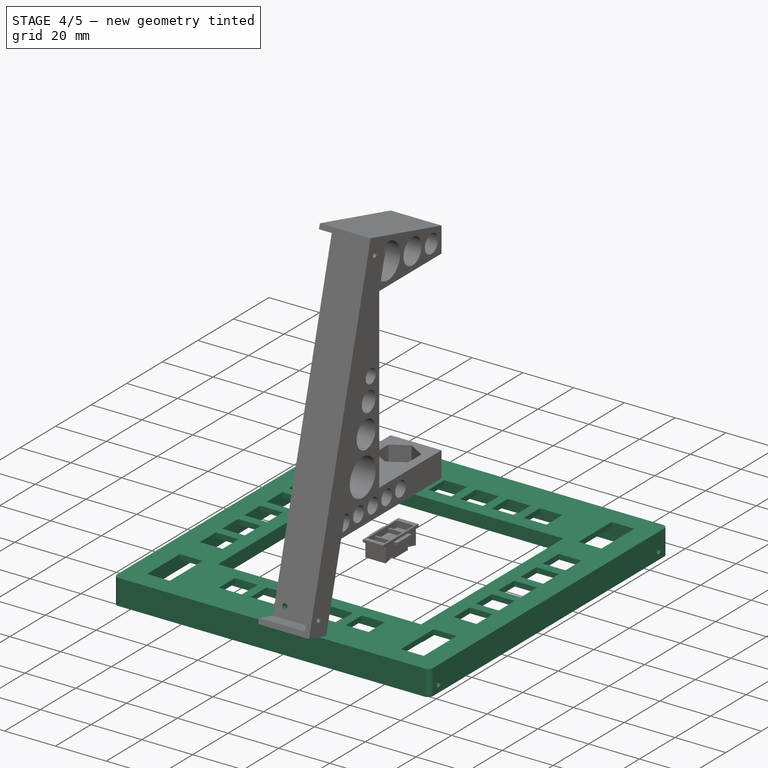
[diagram: stage 4 of 5 — iso view after this stage's code; geometry added in this stage tinted green]
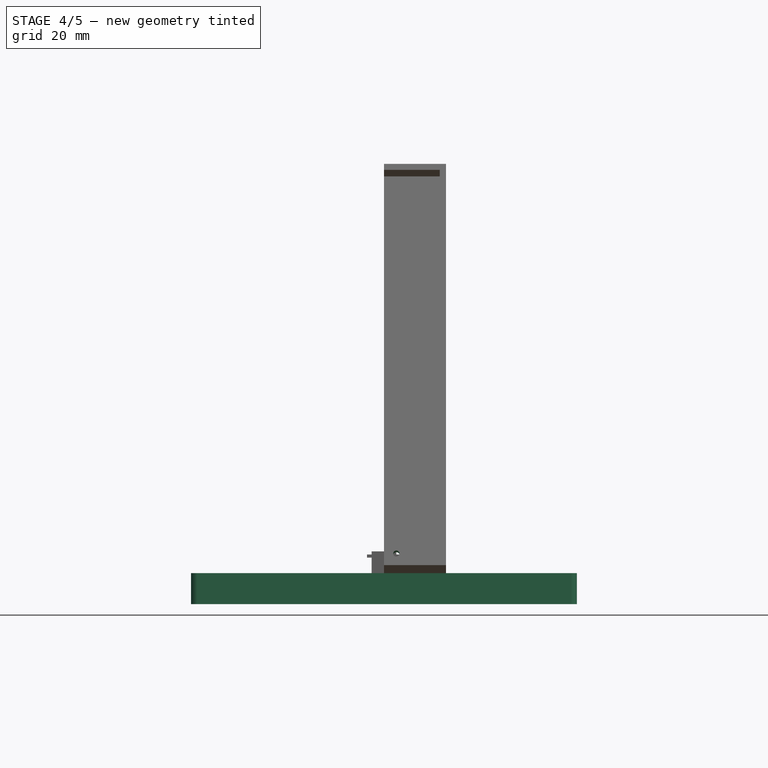
[diagram: stage 4 of 5 — front view after this stage's code; geometry added in this stage tinted green]
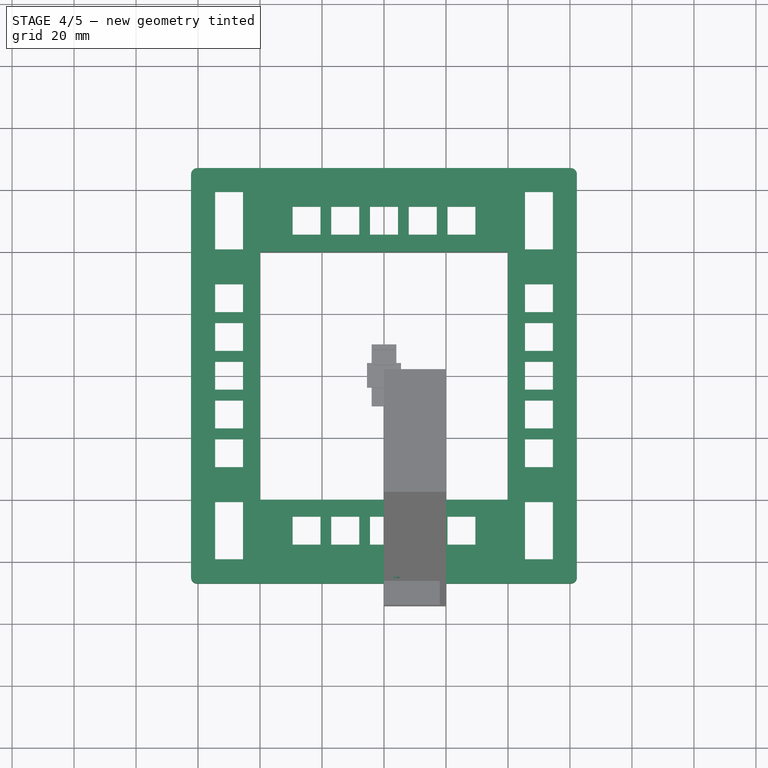
[diagram: stage 4 of 5 — top view after this stage's code; geometry added in this stage tinted green]
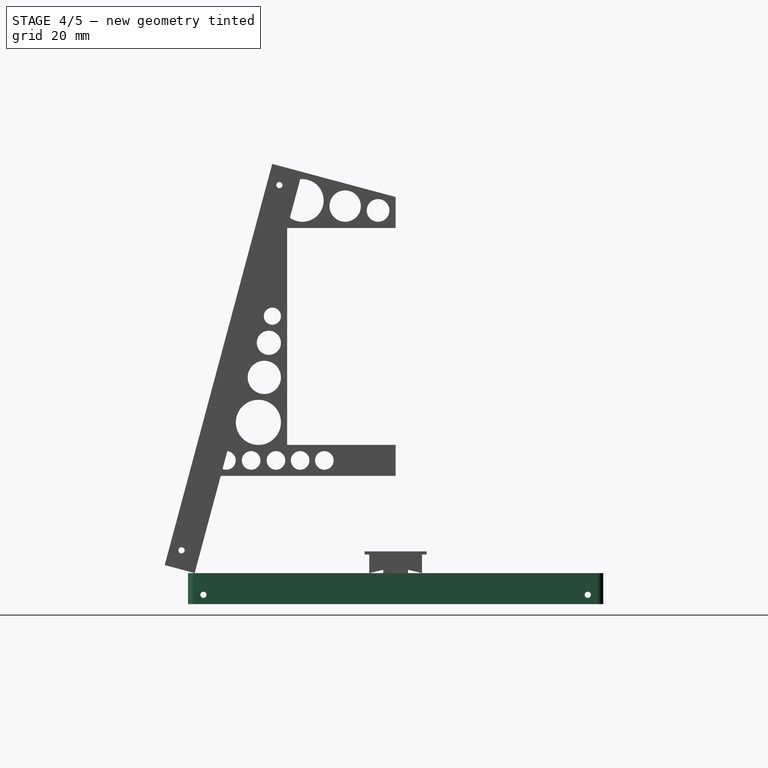
[diagram: stage 4 of 5 — right view after this stage's code; geometry added in this stage tinted green]
FEATURE [PartDesign::Body] Body001  label="Cap"
  Group = -> [Sketch004,Pad002,Sketch005,Pad003,Sketch006,Pocket002]
  Origin = -> Origin001
  Placement = pos=(0,0,-2) rot=(0,0,1;0rad)
  Tip = -> Pocket002
  expr: .Placement.Base.z = -Spreadsheet.Thickness
FEATURE [Sketcher::SketchObject] Sketch007  label="Cover.Pad.Sketch"
  FullyConstrained = true
  MapMode = 5
  Support = -> [XY_Plane002]
  expr: Constraints[10] = Spreadsheet.Width
  expr: Constraints[11] = <<Base.Pad.Sketch>>.Constraints.Length
  expr: Constraints[22] = Spreadsheet.Thickness + Spreadsheet.Tolerance
  expr: Constraints[23] = Spreadsheet.Thickness + Spreadsheet.Tolerance
  sketch-geometry (10):
    g0: LineSegment StartX=-60 StartY=64.75 StartZ=0 EndX=-60 EndY=-64.75 EndZ=0
    g1: LineSegment StartX=-60 StartY=-64.75 StartZ=0 EndX=60 EndY=-64.75 EndZ=0
    g2: LineSegment StartX=60 StartY=-64.75 StartZ=0 EndX=60 EndY=64.75 EndZ=0
    g3: LineSegment StartX=60 StartY=64.75 StartZ=0 EndX=-60 EndY=64.75 EndZ=0
    g4: GeomPoint X=0 Y=0 Z=0
    g5: LineSegment StartX=-62.25 StartY=67 StartZ=0 EndX=-62.25 EndY=-67 EndZ=0
    g6: LineSegment StartX=-62.25 StartY=-67 StartZ=0 EndX=62.25 EndY=-67 EndZ=0
    g7: LineSegment StartX=62.25 StartY=-67 StartZ=0 EndX=62.25 EndY=67 EndZ=0
    g8: LineSegment StartX=62.25 StartY=67 StartZ=0 EndX=-62.25 EndY=67 EndZ=0
    g9: GeomPoint X=0 Y=0 Z=0
  constraints (24):
    c: Coincident(g0,g1)
    c: Coincident(g1,g2)
    c: Coincident(g2,g3)
    c: Coincident(g3,g0)
    c: Horizontal(g1)
    c: Horizontal(g3)
    c: Vertical(g0)
    c: Vertical(g2)
    c: Symmetric(g1,g0,g4)
    c: Coincident(g4,g-1)
    c: DistanceX(g1,g1) = 120
    c: DistanceY(g2,g2) = 129.5
    c: Coincident(g5,g6)
    c: Coincident(g6,g7)
    c: Coincident(g7,g8)
    c: Coincident(g8,g5)
    c: Horizontal(g6)
    c: Horizontal(g8)
    c: Vertical(g5)
    c: Vertical(g7)
    c: Symmetric(g6,g5,g9)
    c: Coincident(g9,g4)
    c: DistanceX(g5,g0) = 2.25
    c: DistanceY(g0,g5) = 2.25
FEATURE [PartDesign::Pad] Pad004  label="Cover.Pad"
  Direction = (0,0,1)
  Length = 10
  Length2 = 10
  Profile = -> Sketch007
  ReferenceAxis = -> Sketch007 [N_Axis]
  Reversed = true
  Type = 0
  expr: Length = Spreadsheet.Height / 2
FEATURE [Sketcher::SketchObject] Sketch009  label="Cover.Pocket.Sketch"
  FullyConstrained = true
  MapMode = 5
  Placement = pos=(0,0,-10) rot=(1,0,0;3.14159rad)
  Support = -> [Pad004]
  expr: Constraints[10] = Spreadsheet.Width
  expr: Constraints[11] = <<Base.Pad.Sketch>>.Constraints.Length
  expr: Constraints[22] = Spreadsheet.Tolerance
  expr: Constraints[23] = Spreadsheet.Tolerance
  sketch-geometry (10):
    g0: LineSegment StartX=-60 StartY=64.75 StartZ=0 EndX=-60 EndY=-64.75 EndZ=0
    g1: LineSegment StartX=-60 StartY=-64.75 StartZ=0 EndX=60 EndY=-64.75 EndZ=0
    g2: LineSegment StartX=60 StartY=-64.75 StartZ=0 EndX=60 EndY=64.75 EndZ=0
    g3: LineSegment StartX=60 StartY=64.75 StartZ=0 EndX=-60 EndY=64.75 EndZ=0
    g4: GeomPoint X=0 Y=0 Z=0
    g5: LineSegment StartX=60.25 StartY=-65 StartZ=0 EndX=60.25 EndY=65 EndZ=0
    g6: LineSegment StartX=60.25 StartY=65 StartZ=0 EndX=-60.25 EndY=65 EndZ=0
    g7: LineSegment StartX=-60.25 StartY=65 StartZ=0 EndX=-60.25 EndY=-65 EndZ=0
    g8: LineSegment StartX=-60.25 StartY=-65 StartZ=0 EndX=60.25 EndY=-65 EndZ=0
    g9: GeomPoint X=0 Y=0 Z=0
  constraints (24):
    c: Coincident(g0,g1)
    c: Coincident(g1,g2)
    c: Coincident(g2,g3)
    c: Coincident(g3,g0)
    c: Horizontal(g1)
    c: Horizontal(g3)
    c: Vertical(g0)
    c: Vertical(g2)
    c: Symmetric(g1,g0,g4)
    c: Coincident(g4,g-1)
    c: DistanceX(g1,g1) = 120
    c: DistanceY(g2,g2) = 129.5
    c: Coincident(g5,g6)
    c: Coincident(g6,g7)
    c: Coincident(g7,g8)
    c: Coincident(g8,g5)
    c: Horizontal(g6)
    c: Horizontal(g8)
    c: Vertical(g5)
    c: Vertical(g7)
    c: Symmetric(g6,g5,g9)
    c: Coincident(g9,g4)
    c: DistanceY(g0,g6) = 0.25
    c: DistanceX(g6,g0) = 0.25
FEATURE [PartDesign::Pocket] Pocket004  label="Cover.Pocket"
  BaseFeature = -> Pad004
  Direction = (0,0,1)
  Length = 8
  Length2 = 5
  Profile = -> Sketch009
  ReferenceAxis = -> Sketch009 [N_Axis]
  Type = 0
  expr: Length = Spreadsheet.Height / 2 - Spreadsheet.Thickness
FEATURE [Sketcher::SketchObject] Sketch008  label="Cover.Buttons.Pocket.Sketch"
  FullyConstrained = true
  MapMode = 5
  Support = -> [Pocket004]
  expr: Constraints[130] = Spreadsheet.ButtonWidth * 1.5
  expr: Constraints[370] = <<Base.Pad.Sketch>>.Constraints.MFDScreenWidth
  expr: Constraints[69] = <<Base.Pad.Sketch>>.Constraints.ButtonStep
  expr: Constraints[70] = Sketch.Constraints.ButtonCenterDistance
  expr: Constraints[71] = Sketch.Constraints.ButtonCenterDistance
  expr: Constraints[82] = Spreadsheet.ButtonWidth * 1.5
  expr: Constraints[83] = 3 * Spreadsheet.ButtonWidth + 2 * Spreadsheet.Tolerance
  sketch-geometry (150):
    g0: GeomPoint X=4e-16 Y=-2e-16 Z=0
    g1: LineSegment StartX=-50 StartY=50 StartZ=0 EndX=-25 EndY=50 EndZ=0
    g2: LineSegment StartX=-25 StartY=50 StartZ=0 EndX=-12.5 EndY=50 EndZ=0
    g3: LineSegment StartX=-12.5 StartY=50 StartZ=0 EndX=0 EndY=50 EndZ=0
    g4: LineSegment StartX=0 StartY=50 StartZ=0 EndX=12.5 EndY=50 EndZ=0
    g5: LineSegment StartX=12.5 StartY=50 StartZ=0 EndX=25 EndY=50 EndZ=0
    g6: LineSegment StartX=25 StartY=50 StartZ=0 EndX=50 EndY=50 EndZ=0
    g7: LineSegment StartX=50 StartY=50 StartZ=0 EndX=50 EndY=25 EndZ=0
    g8: LineSegment StartX=50 StartY=25 StartZ=0 EndX=50 EndY=12.5 EndZ=0
    g9: LineSegment StartX=50 StartY=12.5 StartZ=0 EndX=50 EndY=0 EndZ=0
    g10: LineSegment StartX=50 StartY=0 StartZ=0 EndX=50 EndY=-12.5 EndZ=0
    g11: LineSegment StartX=50 StartY=-12.5 StartZ=0 EndX=50 EndY=-25 EndZ=0
    g12: LineSegment StartX=50 StartY=-25 StartZ=0 EndX=50 EndY=-50 EndZ=0
    g13: LineSegment StartX=50 StartY=-50 StartZ=0 EndX=25 EndY=-50 EndZ=0
    g14: LineSegment StartX=25 StartY=-50 StartZ=0 EndX=12.5 EndY=-50 EndZ=0
    g15: LineSegment StartX=12.5 StartY=-50 StartZ=0 EndX=0 EndY=-50 EndZ=0
    g16: LineSegment StartX=0 StartY=-50 StartZ=0 EndX=-12.5 EndY=-50 EndZ=0
    g17: LineSegment StartX=-12.5 StartY=-50 StartZ=0 EndX=-25 EndY=-50 EndZ=0
    g18: LineSegment StartX=-25 StartY=-50 StartZ=0 EndX=-50 EndY=-50 EndZ=0
    g19: LineSegment StartX=-50 StartY=-50 StartZ=0 EndX=-50 EndY=-25 EndZ=0
    g20: LineSegment StartX=-50 StartY=-25 StartZ=0 EndX=-50 EndY=-12.5 EndZ=0
    g21: LineSegment StartX=-50 StartY=-12.5 StartZ=0 EndX=-50 EndY=0 EndZ=0
    g22: LineSegment StartX=-50 StartY=0 StartZ=0 EndX=-50 EndY=12.5 EndZ=0
    g23: LineSegment StartX=-50 StartY=12.5 StartZ=0 EndX=-50 EndY=25 EndZ=0
    g24: LineSegment StartX=-50 StartY=25 StartZ=0 EndX=-50 EndY=50 EndZ=0
    g25: LineSegment StartX=-54.5 StartY=59.25 StartZ=0 EndX=-54.5 EndY=40.75 EndZ=0
    g26: LineSegment StartX=-54.5 StartY=40.75 StartZ=0 EndX=-45.5 EndY=40.75 EndZ=0
    g27: LineSegment StartX=-45.5 StartY=40.75 StartZ=0 EndX=-45.5 EndY=59.25 EndZ=0
    g28: LineSegment StartX=-45.5 StartY=59.25 StartZ=0 EndX=-54.5 EndY=59.25 EndZ=0
    g29: GeomPoint X=-50 Y=50 Z=0
    g30: LineSegment StartX=45.5 StartY=59.25 StartZ=0 EndX=45.5 EndY=40.75 EndZ=0
    g31: LineSegment StartX=45.5 StartY=40.75 StartZ=0 EndX=54.5 EndY=40.75 EndZ=0
    g32: LineSegment StartX=54.5 StartY=40.75 StartZ=0 EndX=54.5 EndY=59.25 EndZ=0
    g33: LineSegment StartX=54.5 StartY=59.25 StartZ=0 EndX=45.5 EndY=59.25 EndZ=0
    g34: GeomPoint X=50 Y=50 Z=0
    g35: LineSegment StartX=-54.5 StartY=-40.75 StartZ=0 EndX=-54.5 EndY=-59.25 EndZ=0
    g36: LineSegment StartX=-54.5 StartY=-59.25 StartZ=0 EndX=-45.5 EndY=-59.25 EndZ=0
    g37: LineSegment StartX=-45.5 StartY=-59.25 StartZ=0 EndX=-45.5 EndY=-40.75 EndZ=0
    g38: LineSegment StartX=-45.5 StartY=-40.75 StartZ=0 EndX=-54.5 EndY=-40.75 EndZ=0
    g39: GeomPoint X=-50 Y=-50 Z=0
    g40: LineSegment StartX=45.5 StartY=-40.75 StartZ=0 EndX=45.5 EndY=-59.25 EndZ=0
    g41: LineSegment StartX=45.5 StartY=-59.25 StartZ=0 EndX=54.5 EndY=-59.25 EndZ=0
    g42: LineSegment StartX=54.5 StartY=-59.25 StartZ=0 EndX=54.5 EndY=-40.75 EndZ=0
    g43: LineSegment StartX=54.5 StartY=-40.75 StartZ=0 EndX=45.5 EndY=-40.75 EndZ=0
    g44: GeomPoint X=50 Y=-50 Z=0
    g45: LineSegment StartX=-54.5 StartY=29.5 StartZ=0 EndX=-54.5 EndY=20.5 EndZ=0
    g46: LineSegment StartX=-54.5 StartY=20.5 StartZ=0 EndX=-45.5 EndY=20.5 EndZ=0
    g47: LineSegment StartX=-45.5 StartY=20.5 StartZ=0 EndX=-45.5 EndY=29.5 EndZ=0
    g48: LineSegment StartX=-45.5 StartY=29.5 StartZ=0 EndX=-54.5 EndY=29.5 EndZ=0
    g49: GeomPoint X=-50 Y=25 Z=0
    g50: LineSegment StartX=-54.5 StartY=17 StartZ=0 EndX=-54.5 EndY=8 EndZ=0
    g51: LineSegment StartX=-54.5 StartY=8 StartZ=0 EndX=-45.5 EndY=8 EndZ=0
    g52: LineSegment StartX=-45.5 StartY=8 StartZ=0 EndX=-45.5 EndY=17 EndZ=0
    g53: LineSegment StartX=-45.5 StartY=17 StartZ=0 EndX=-54.5 EndY=17 EndZ=0
    g54: GeomPoint X=-50 Y=12.5 Z=0
    g55: LineSegment StartX=-54.5 StartY=4.5 StartZ=0 EndX=-54.5 EndY=-4.5 EndZ=0
    g56: LineSegment StartX=-54.5 StartY=-4.5 StartZ=0 EndX=-45.5 EndY=-4.5 EndZ=0
    g57: LineSegment StartX=-45.5 StartY=-4.5 StartZ=0 EndX=-45.5 EndY=4.5 EndZ=0
    g58: LineSegment StartX=-45.5 StartY=4.5 StartZ=0 EndX=-54.5 EndY=4.5 EndZ=0
    g59: GeomPoint X=-50 Y=0 Z=0
    g60: LineSegment StartX=-54.5 StartY=-8 StartZ=0 EndX=-54.5 EndY=-17 EndZ=0
    g61: LineSegment StartX=-54.5 StartY=-17 StartZ=0 EndX=-45.5 EndY=-17 EndZ=0
    g62: LineSegment StartX=-45.5 StartY=-17 StartZ=0 EndX=-45.5 EndY=-8 EndZ=0
    g63: LineSegment StartX=-45.5 StartY=-8 StartZ=0 EndX=-54.5 EndY=-8 EndZ=0
    g64: GeomPoint X=-50 Y=-12.5 Z=0
    g65: LineSegment StartX=-54.5 StartY=-20.5 StartZ=0 EndX=-54.5 EndY=-29.5 EndZ=0
    g66: LineSegment StartX=-54.5 StartY=-29.5 StartZ=0 EndX=-45.5 EndY=-29.5 EndZ=0
    g67: LineSegment StartX=-45.5 StartY=-29.5 StartZ=0 EndX=-45.5 EndY=-20.5 EndZ=0
    g68: LineSegment StartX=-45.5 StartY=-20.5 StartZ=0 EndX=-54.5 EndY=-20.5 EndZ=0
    g69: GeomPoint X=-50 Y=-25 Z=0
    g70: LineSegment StartX=-29.5 StartY=-45.5 StartZ=0 EndX=-29.5 EndY=-54.5 EndZ=0
    g71: LineSegment StartX=-29.5 StartY=-54.5 StartZ=0 EndX=-20.5 EndY=-54.5 EndZ=0
    g72: LineSegment StartX=-20.5 StartY=-54.5 StartZ=0 EndX=-20.5 EndY=-45.5 EndZ=0
    g73: LineSegment StartX=-20.5 StartY=-45.5 StartZ=0 EndX=-29.5 EndY=-45.5 EndZ=0
    g74: GeomPoint X=-25 Y=-50 Z=0
    g75: LineSegment StartX=-17 StartY=-45.5 StartZ=0 EndX=-17 EndY=-54.5 EndZ=0
    g76: LineSegment StartX=-17 StartY=-54.5 StartZ=0 EndX=-8 EndY=-54.5 EndZ=0
    g77: LineSegment StartX=-8 StartY=-54.5 StartZ=0 EndX=-8 EndY=-45.5 EndZ=0
    g78: LineSegment StartX=-8 StartY=-45.5 StartZ=0 EndX=-17 EndY=-45.5 EndZ=0
    g79: GeomPoint X=-12.5 Y=-50 Z=0
    g80: LineSegment StartX=-4.5 StartY=-45.5 StartZ=0 EndX=-4.5 EndY=-54.5 EndZ=0
    g81: LineSegment StartX=-4.5 StartY=-54.5 StartZ=0 EndX=4.5 EndY=-54.5 EndZ=0
    g82: LineSegment StartX=4.5 StartY=-54.5 StartZ=0 EndX=4.5 EndY=-45.5 EndZ=0
    g83: LineSegment StartX=4.5 StartY=-45.5 StartZ=0 EndX=-4.5 EndY=-45.5 EndZ=0
    g84: GeomPoint X=0 Y=-50 Z=0
    g85: LineSegment StartX=8 StartY=-45.5 StartZ=0 EndX=8 EndY=-54.5 EndZ=0
    g86: LineSegment StartX=8 StartY=-54.5 StartZ=0 EndX=17 EndY=-54.5 EndZ=0
    g87: LineSegment StartX=17 StartY=-54.5 StartZ=0 EndX=17 EndY=-45.5 EndZ=0
    g88: LineSegment StartX=17 StartY=-45.5 StartZ=0 EndX=8 EndY=-45.5 EndZ=0
    g89: GeomPoint X=12.5 Y=-50 Z=0
    g90: LineSegment StartX=20.5 StartY=-45.5 StartZ=0 EndX=20.5 EndY=-54.5 EndZ=0
    g91: LineSegment StartX=20.5 StartY=-54.5 StartZ=0 EndX=29.5 EndY=-54.5 EndZ=0
    g92: LineSegment StartX=29.5 StartY=-54.5 StartZ=0 EndX=29.5 EndY=-45.5 EndZ=0
    g93: LineSegment StartX=29.5 StartY=-45.5 StartZ=0 EndX=20.5 EndY=-45.5 EndZ=0
    g94: GeomPoint X=25 Y=-50 Z=0
    g95: LineSegment StartX=45.5 StartY=-20.5 StartZ=0 EndX=45.5 EndY=-29.5 EndZ=0
    g96: LineSegment StartX=45.5 StartY=-29.5 StartZ=0 EndX=54.5 EndY=-29.5 EndZ=0
    g97: LineSegment StartX=54.5 StartY=-29.5 StartZ=0 EndX=54.5 EndY=-20.5 EndZ=0
    g98: LineSegment StartX=54.5 StartY=-20.5 StartZ=0 EndX=45.5 EndY=-20.5 EndZ=0
    g99: GeomPoint X=50 Y=-25 Z=0
    g100: LineSegment StartX=45.5 StartY=-8 StartZ=0 EndX=45.5 EndY=-17 EndZ=0
    g101: LineSegment StartX=45.5 StartY=-17 StartZ=0 EndX=54.5 EndY=-17 EndZ=0
    g102: LineSegment StartX=54.5 StartY=-17 StartZ=0 EndX=54.5 EndY=-8 EndZ=0
    g103: LineSegment StartX=54.5 StartY=-8 StartZ=0 EndX=45.5 EndY=-8 EndZ=0
    g104: GeomPoint X=50 Y=-12.5 Z=0
    g105: LineSegment StartX=45.5 StartY=4.5 StartZ=0 EndX=45.5 EndY=-4.5 EndZ=0
    g106: LineSegment StartX=45.5 StartY=-4.5 StartZ=0 EndX=54.5 EndY=-4.5 EndZ=0
    g107: LineSegment StartX=54.5 StartY=-4.5 StartZ=0 EndX=54.5 EndY=4.5 EndZ=0
    g108: LineSegment StartX=54.5 StartY=4.5 StartZ=0 EndX=45.5 EndY=4.5 EndZ=0
    g109: GeomPoint X=50 Y=0 Z=0
    g110: LineSegment StartX=45.5 StartY=17 StartZ=0 EndX=45.5 EndY=8 EndZ=0
    g111: LineSegment StartX=45.5 StartY=8 StartZ=0 EndX=54.5 EndY=8 EndZ=0
    g112: LineSegment StartX=54.5 StartY=8 StartZ=0 EndX=54.5 EndY=17 EndZ=0
    g113: LineSegment StartX=54.5 StartY=17 StartZ=0 EndX=45.5 EndY=17 EndZ=0
    g114: GeomPoint X=50 Y=12.5 Z=0
    g115: LineSegment StartX=45.5 StartY=29.5 StartZ=0 EndX=45.5 EndY=20.5 EndZ=0
    g116: LineSegment StartX=45.5 StartY=20.5 StartZ=0 EndX=54.5 EndY=20.5 EndZ=0
    g117: LineSegment StartX=54.5 StartY=20.5 StartZ=0 EndX=54.5 EndY=29.5 EndZ=0
    g118: LineSegment StartX=54.5 StartY=29.5 StartZ=0 EndX=45.5 EndY=29.5 EndZ=0
    g119: GeomPoint X=50 Y=25 Z=0
    g120: LineSegment StartX=20.5 StartY=54.5 StartZ=0 EndX=20.5 EndY=45.5 EndZ=0
    g121: LineSegment StartX=20.5 StartY=45.5 StartZ=0 EndX=29.5 EndY=45.5 EndZ=0
    g122: LineSegment StartX=29.5 StartY=45.5 StartZ=0 EndX=29.5 EndY=54.5 EndZ=0
    g123: LineSegment StartX=29.5 StartY=54.5 StartZ=0 EndX=20.5 EndY=54.5 EndZ=0
    g124: GeomPoint X=25 Y=50 Z=0
    g125: LineSegment StartX=8 StartY=54.5 StartZ=0 EndX=8 EndY=45.5 EndZ=0
    g126: LineSegment StartX=8 StartY=45.5 StartZ=0 EndX=17 EndY=45.5 EndZ=0
    g127: LineSegment StartX=17 StartY=45.5 StartZ=0 EndX=17 EndY=54.5 EndZ=0
    g128: LineSegment StartX=17 StartY=54.5 StartZ=0 EndX=8 EndY=54.5 EndZ=0
    g129: GeomPoint X=12.5 Y=50 Z=0
    g130: LineSegment StartX=-4.5 StartY=54.5 StartZ=0 EndX=-4.5 EndY=45.5 EndZ=0
    g131: LineSegment StartX=-4.5 StartY=45.5 StartZ=0 EndX=4.5 EndY=45.5 EndZ=0
    g132: LineSegment StartX=4.5 StartY=45.5 StartZ=0 EndX=4.5 EndY=54.5 EndZ=0
    g133: LineSegment StartX=4.5 StartY=54.5 StartZ=0 EndX=-4.5 EndY=54.5 EndZ=0
    g134: GeomPoint X=0 Y=50 Z=0
    g135: LineSegment StartX=-17 StartY=54.5 StartZ=0 EndX=-17 EndY=45.5 EndZ=0
    g136: LineSegment StartX=-17 StartY=45.5 StartZ=0 EndX=-8 EndY=45.5 EndZ=0
    g137: LineSegment StartX=-8 StartY=45.5 StartZ=0 EndX=-8 EndY=54.5 EndZ=0
    g138: LineSegment StartX=-8 StartY=54.5 StartZ=0 EndX=-17 EndY=54.5 EndZ=0
    g139: GeomPoint X=-12.5 Y=50 Z=0
    g140: LineSegment StartX=-29.5 StartY=54.5 StartZ=0 EndX=-29.5 EndY=45.5 EndZ=0
    g141: LineSegment StartX=-29.5 StartY=45.5 StartZ=0 EndX=-20.5 EndY=45.5 EndZ=0
    g142: LineSegment StartX=-20.5 StartY=45.5 StartZ=0 EndX=-20.5 EndY=54.5 EndZ=0
    g143: LineSegment StartX=-20.5 StartY=54.5 StartZ=0 EndX=-29.5 EndY=54.5 EndZ=0
    g144: GeomPoint X=-25 Y=50 Z=0
    g145: LineSegment StartX=-40 StartY=40 StartZ=0 EndX=-40 EndY=-40 EndZ=0
    g146: LineSegment StartX=-40 StartY=-40 StartZ=0 EndX=40 EndY=-40 EndZ=0
    g147: LineSegment StartX=40 StartY=-40 StartZ=0 EndX=40 EndY=40 EndZ=0
    g148: LineSegment StartX=40 StartY=40 StartZ=0 EndX=-40 EndY=40 EndZ=0
    g149: GeomPoint X=4e-16 Y=-2e-16 Z=0
  constraints (372):
    c: Coincident(g24,g1)
    c: Coincident(g6,g7)
    c: Coincident(g12,g13)
    c: Coincident(g18,g19)
    c: Symmetric(g6,g19,g0)
    c: Coincident(g0,g-1)
    c: Coincident(g1,g2)
    c: Horizontal(g1)
    c: Coincident(g2,g3)
    c: Horizontal(g2)
    c: Coincident(g3,g4)
    c: Horizontal(g3)
    c: Coincident(g4,g5)
    c: Horizontal(g4)
    c: Coincident(g5,g6)
    c: Horizontal(g5)
    c: Horizontal(g6)
    c: Coincident(g7,g8)
    c: Vertical(g7)
    c: Coincident(g8,g9)
    c: Vertical(g8)
    c: Coincident(g9,g10)
    c: Vertical(g9)
    c: Coincident(g10,g11)
    c: Vertical(g10)
    c: Coincident(g11,g12)
    c: Vertical(g11)
    c: Vertical(g12)
    c: Coincident(g13,g14)
    c: Horizontal(g13)
    c: Coincident(g14,g15)
    c: Horizontal(g14)
    c: Coincident(g15,g16)
    c: Horizontal(g15)
    c: Coincident(g16,g17)
    c: Horizontal(g16)
    c: Coincident(g17,g18)
    c: Horizontal(g17)
    c: Horizontal(g18)
    c: Coincident(g19,g20)
    c: Vertical(g19)
    c: Coincident(g20,g21)
    c: Vertical(g20)
    c: Coincident(g21,g22)
    c: Vertical(g21)
    c: Coincident(g22,g23)
    c: Vertical(g22)
    c: Coincident(g23,g24)
    c: Vertical(g23)
    c: Vertical(g24)
    c: PointOnObject(g21,g-1)
    c: PointOnObject(g3,g-2)
    c: PointOnObject(g9,g-1)
    c: PointOnObject(g15,g-2)
    c: Equal(g23,g22)
    c: Equal(g22,g21)
    c: Equal(g21,g20)
    c: Equal(g20,g2)
    c: Equal(g2,g3)
    c: Equal(g3,g4)
    c: Equal(g4,g5)
    c: Equal(g5,g8)
    c: Equal(g8,g9)
    c: Equal(g9,g10)
    c: Equal(g10,g11)
    c: Equal(g11,g14)
    c: Equal(g14,g15)
    c: Equal(g15,g16)
    c: Equal(g16,g17)
    c: DistanceY(g23,g23) = 12.5
    c: DistanceX(g21,g0) = 50
    c: DistanceY(g0,g3) = 50
    c: Coincident(g25,g26)
    c: Coincident(g26,g27)
    c: Coincident(g27,g28)
    c: Coincident(g28,g25)
    c: Horizontal(g26)
    c: Horizontal(g28)
    c: Vertical(g25)
    c: Vertical(g27)
    c: Symmetric(g26,g25,g29)
    c: Coincident(g29,g1)
    c: DistanceX(g28,g28) = 9
    c: DistanceY(g25,g25) = 18.5
    c: Coincident(g30,g31)
    c: Coincident(g31,g32)
    c: Coincident(g32,g33)
    c: Coincident(g33,g30)
    c: Horizontal(g31)
    c: Horizontal(g33)
    c: Vertical(g30)
    c: Vertical(g32)
    c: Symmetric(g31,g30,g34)
    c: Equal(g28,g33) = 9
    c: Equal(g25,g30) = 18.5
    c: Coincident(g34,g6)
    c: Coincident(g35,g36)
    c: Coincident(g36,g37)
    c: Coincident(g37,g38)
    c: Coincident(g38,g35)
    c: Horizontal(g36)
    c: Horizontal(g38)
    c: Vertical(g35)
    c: Vertical(g37)
    c: Symmetric(g36,g35,g39)
    c: Equal(g28,g38) = 9
    c: Equal(g25,g35) = 18.5
    c: Coincident(g39,g18)
    c: Coincident(g40,g41)
    c: Coincident(g41,g42)
    c: Coincident(g42,g43)
    c: Coincident(g43,g40)
    c: Horizontal(g41)
    c: Horizontal(g43)
    c: Vertical(g40)
    c: Vertical(g42)
    c: Symmetric(g41,g40,g44)
    c: Equal(g28,g43) = 9
    c: Equal(g25,g40) = 18.5
    c: Coincident(g44,g12)
    c: Coincident(g45,g46)
    c: Coincident(g46,g47)
    c: Coincident(g47,g48)
    c: Coincident(g48,g45)
    c: Horizontal(g46)
    c: Horizontal(g48)
    c: Vertical(g45)
    c: Vertical(g47)
    c: Symmetric(g46,g45,g49)
    c: Equal(g48,g45)
    c: DistanceX(g48,g48) = 9
    c: Coincident(g50,g51)
    c: Coincident(g51,g52)
    c: Coincident(g52,g53)
    c: Coincident(g53,g50)
    c: Horizontal(g51)
    c: Horizontal(g53)
    c: Vertical(g50)
    c: Vertical(g52)
    c: Symmetric(g51,g50,g54)
    c: Equal(g53,g50)
    c: Equal(g48,g53) = 9
    c: Coincident(g54,g22)
    c: Coincident(g55,g56)
    c: Coincident(g56,g57)
    c: Coincident(g57,g58)
    c: Coincident(g58,g55)
    c: Horizontal(g56)
    c: Horizontal(g58)
    c: Vertical(g55)
    c: Vertical(g57)
    c: Symmetric(g56,g55,g59)
    c: Equal(g58,g55)
    c: Equal(g48,g58) = 9
    c: Coincident(g59,g21)
    c: Coincident(g60,g61)
    c: Coincident(g61,g62)
    c: Coincident(g62,g63)
    c: Coincident(g63,g60)
    c: Horizontal(g61)
    c: Horizontal(g63)
    c: Vertical(g60)
    c: Vertical(g62)
    c: Symmetric(g61,g60,g64)
    c: Equal(g63,g60)
    c: Equal(g48,g63) = 9
    c: Coincident(g64,g20)
    c: Coincident(g65,g66)
    c: Coincident(g66,g67)
    c: Coincident(g67,g68)
    c: Coincident(g68,g65)
    c: Horizontal(g66)
    c: Horizontal(g68)
    c: Vertical(g65)
    c: Vertical(g67)
    c: Symmetric(g66,g65,g69)
    c: Equal(g68,g65)
    c: Equal(g48,g68) = 9
    c: Coincident(g69,g19)
    c: Coincident(g70,g71)
    c: Coincident(g71,g72)
    c: Coincident(g72,g73)
    c: Coincident(g73,g70)
    c: Horizontal(g71)
    c: Horizontal(g73)
    c: Vertical(g70)
    c: Vertical(g72)
    c: Symmetric(g71,g70,g74)
    c: Equal(g73,g70)
    c: Equal(g48,g73) = 9
    c: Coincident(g74,g17)
    c: Coincident(g75,g76)
    c: Coincident(g76,g77)
    c: Coincident(g77,g78)
    c: Coincident(g78,g75)
    c: Horizontal(g76)
    c: Horizontal(g78)
    c: Vertical(g75)
    c: Vertical(g77)
    c: Symmetric(g76,g75,g79)
    c: Equal(g78,g75)
    c: Equal(g48,g78) = 9
    c: Coincident(g79,g16)
    c: Coincident(g80,g81)
    c: Coincident(g81,g82)
    c: Coincident(g82,g83)
    c: Coincident(g83,g80)
    c: Horizontal(g81)
    c: Horizontal(g83)
    c: Vertical(g80)
    c: Vertical(g82)
    c: Symmetric(g81,g80,g84)
    c: Equal(g83,g80)
    c: Equal(g48,g83) = 9
    c: Coincident(g84,g15)
    c: Coincident(g85,g86)
    c: Coincident(g86,g87)
    c: Coincident(g87,g88)
    c: Coincident(g88,g85)
    c: Horizontal(g86)
    c: Horizontal(g88)
    c: Vertical(g85)
    c: Vertical(g87)
    c: Symmetric(g86,g85,g89)
    c: Equal(g88,g85)
    c: Equal(g48,g88) = 9
    c: Coincident(g89,g14)
    c: Coincident(g90,g91)
    c: Coincident(g91,g92)
    c: Coincident(g92,g93)
    c: Coincident(g93,g90)
    c: Horizontal(g91)
    c: Horizontal(g93)
    c: Vertical(g90)
    c: Vertical(g92)
    c: Symmetric(g91,g90,g94)
    c: Equal(g93,g90)
    c: Equal(g48,g93) = 9
    c: Coincident(g94,g13)
    c: Coincident(g95,g96)
    c: Coincident(g96,g97)
    c: Coincident(g97,g98)
    c: Coincident(g98,g95)
    c: Horizontal(g96)
    c: Horizontal(g98)
    c: Vertical(g95)
    c: Vertical(g97)
    c: Symmetric(g96,g95,g99)
    c: Equal(g98,g95)
    c: Equal(g48,g98) = 9
    c: Coincident(g99,g11)
    c: Coincident(g100,g101)
    c: Coincident(g101,g102)
    c: Coincident(g102,g103)
    c: Coincident(g103,g100)
    c: Horizontal(g101)
    c: Horizontal(g103)
    c: Vertical(g100)
    c: Vertical(g102)
    c: Symmetric(g101,g100,g104)
    c: Equal(g103,g100)
    c: Equal(g48,g103) = 9
    c: Coincident(g104,g10)
    c: Coincident(g105,g106)
    c: Coincident(g106,g107)
    c: Coincident(g107,g108)
    c: Coincident(g108,g105)
    c: Horizontal(g106)
    c: Horizontal(g108)
    c: Vertical(g105)
    c: Vertical(g107)
    c: Symmetric(g106,g105,g109)
    c: Equal(g108,g105)
    c: Equal(g48,g108) = 9
    c: Coincident(g109,g9)
    c: Coincident(g110,g111)
    c: Coincident(g111,g112)
    c: Coincident(g112,g113)
    c: Coincident(g113,g110)
    c: Horizontal(g111)
    c: Horizontal(g113)
    c: Vertical(g110)
    c: Vertical(g112)
    c: Symmetric(g111,g110,g114)
    c: Equal(g113,g110)
    c: Equal(g48,g113) = 9
    c: Coincident(g114,g8)
    c: Coincident(g115,g116)
    c: Coincident(g116,g117)
    c: Coincident(g117,g118)
    c: Coincident(g118,g115)
    c: Horizontal(g116)
    c: Horizontal(g118)
    c: Vertical(g115)
    c: Vertical(g117)
    c: Symmetric(g116,g115,g119)
    c: Equal(g118,g115)
    c: Equal(g48,g118) = 9
    c: Coincident(g119,g7)
    c: Coincident(g120,g121)
    c: Coincident(g121,g122)
    c: Coincident(g122,g123)
    c: Coincident(g123,g120)
    c: Horizontal(g121)
    c: Horizontal(g123)
    c: Vertical(g120)
    c: Vertical(g122)
    c: Symmetric(g121,g120,g124)
    c: Equal(g123,g120)
    c: Equal(g48,g123) = 9
    c: Coincident(g124,g5)
    c: Coincident(g125,g126)
    c: Coincident(g126,g127)
    c: Coincident(g127,g128)
    c: Coincident(g128,g125)
    c: Horizontal(g126)
    c: Horizontal(g128)
    c: Vertical(g125)
    c: Vertical(g127)
    c: Symmetric(g126,g125,g129)
    c: Equal(g128,g125)
    c: Equal(g48,g128) = 9
    c: Coincident(g129,g4)
    c: Coincident(g130,g131)
    c: Coincident(g131,g132)
    c: Coincident(g132,g133)
    c: Coincident(g133,g130)
    c: Horizontal(g131)
    c: Horizontal(g133)
    c: Vertical(g130)
    c: Vertical(g132)
    c: Symmetric(g131,g130,g134)
    c: Equal(g133,g130)
    c: Equal(g48,g133) = 9
    c: Coincident(g134,g3)
    c: Coincident(g135,g136)
    c: Coincident(g136,g137)
    c: Coincident(g137,g138)
    c: Coincident(g138,g135)
    c: Horizontal(g136)
    c: Horizontal(g138)
    c: Vertical(g135)
    c: Vertical(g137)
    c: Symmetric(g136,g135,g139)
    c: Equal(g138,g135)
    c: Equal(g48,g138) = 9
    c: Coincident(g139,g2)
    c: Coincident(g140,g141)
    c: Coincident(g141,g142)
    c: Coincident(g142,g143)
    c: Coincident(g143,g140)
    c: Horizontal(g141)
    c: Horizontal(g143)
    c: Vertical(g140)
    c: Vertical(g142)
    c: Symmetric(g141,g140,g144)
    c: Equal(g143,g140)
    c: Equal(g48,g143) = 9
    c: Coincident(g144,g1)
    c: Coincident(g49,g23)
    c: Coincident(g145,g146)
    c: Coincident(g146,g147)
    c: Coincident(g147,g148)
    c: Coincident(g148,g145)
    c: Horizontal(g146)
    c: Horizontal(g148)
    c: Vertical(g145)
    c: Vertical(g147)
    c: Symmetric(g146,g145,g149)
    c: Coincident(g149,g0)
    c: DistanceX(g148,g148) = 80
    c: Equal(g145,g148)
FEATURE [PartDesign::Pocket] Pocket005  label="Cover.Buttons.Pocket"
  BaseFeature = -> Pocket004
  Direction = (0,0,-1)
  Length = 5
  Length2 = 5
  Profile = -> Sketch008
  ReferenceAxis = -> Sketch008 [N_Axis]
  Type = 1
FEATURE [Sketcher::SketchObject] Sketch010  label="Cover.Supports.Pad.Sketch"
  FullyConstrained = true
  MapMode = 5
  Placement = pos=(0,0,-2) rot=(1,0,0;3.14159rad)
  Support = -> [Pocket005]
  expr: Constraints[20] = Spreadsheet.Thickness
  expr: Constraints[21] = Spreadsheet.Thickness
  expr: Constraints[23] = <<Base.Pad.Sketch>>.Constraints.MFDScreenWidth
  expr: Constraints[34] = <<Base.Pad.Sketch>>.Constraints.Length
  expr: Constraints[35] = Spreadsheet.Width
  expr: Constraints[56] = Spreadsheet.Thickness
  expr: Constraints[57] = Spreadsheet.Thickness
  expr: Constraints[58] = Spreadsheet.Tolerance
  expr: Constraints[59] = Spreadsheet.Tolerance
  sketch-geometry (25):
    g0: LineSegment StartX=-42 StartY=42 StartZ=0 EndX=-42 EndY=-42 EndZ=0
    g1: LineSegment StartX=-42 StartY=-42 StartZ=0 EndX=42 EndY=-42 EndZ=0
    g2: LineSegment StartX=42 StartY=-42 StartZ=0 EndX=42 EndY=42 EndZ=0
    g3: LineSegment StartX=42 StartY=42 StartZ=0 EndX=-42 EndY=42 EndZ=0
    g4: GeomPoint X=0 Y=0 Z=0
    g5: LineSegment StartX=-40 StartY=40 StartZ=0 EndX=-40 EndY=-40 EndZ=0
    g6: LineSegment StartX=-40 StartY=-40 StartZ=0 EndX=40 EndY=-40 EndZ=0
    g7: LineSegment StartX=40 StartY=-40 StartZ=0 EndX=40 EndY=40 EndZ=0
    g8: LineSegment StartX=40 StartY=40 StartZ=0 EndX=-40 EndY=40 EndZ=0
    g9: GeomPoint X=0 Y=0 Z=0
    g10: LineSegment StartX=-60 StartY=-64.75 StartZ=0 EndX=-60 EndY=64.75 EndZ=0
    g11: LineSegment StartX=-60 StartY=64.75 StartZ=0 EndX=60 EndY=64.75 EndZ=0
    g12: LineSegment StartX=60 StartY=64.75 StartZ=0 EndX=60 EndY=-64.75 EndZ=0
    g13: LineSegment StartX=60 StartY=-64.75 StartZ=0 EndX=-60 EndY=-64.75 EndZ=0
    g14: GeomPoint X=0 Y=0 Z=0
    g15: LineSegment StartX=58.25 StartY=-63 StartZ=0 EndX=58.25 EndY=63 EndZ=0
    g16: LineSegment StartX=58.25 StartY=63 StartZ=0 EndX=-58.25 EndY=63 EndZ=0
    g17: LineSegment StartX=-58.25 StartY=63 StartZ=0 EndX=-58.25 EndY=-63 EndZ=0
    g18: LineSegment StartX=-58.25 StartY=-63 StartZ=0 EndX=58.25 EndY=-63 EndZ=0
    g19: GeomPoint X=0 Y=0 Z=0
    g20: LineSegment StartX=60.25 StartY=-65 StartZ=0 EndX=60.25 EndY=65 EndZ=0
    g21: LineSegment StartX=60.25 StartY=65 StartZ=0 EndX=-60.25 EndY=65 EndZ=0
    g22: LineSegment StartX=-60.25 StartY=65 StartZ=0 EndX=-60.25 EndY=-65 EndZ=0
    g23: LineSegment StartX=-60.25 StartY=-65 StartZ=0 EndX=60.25 EndY=-65 EndZ=0
    g24: GeomPoint X=0 Y=0 Z=0
  constraints (60):
    c: Coincident(g0,g1)
    c: Coincident(g1,g2)
    c: Coincident(g2,g3)
    c: Coincident(g3,g0)
    c: Horizontal(g1)
    c: Horizontal(g3)
    c: Vertical(g0)
    c: Vertical(g2)
    c: Symmetric(g1,g0,g4)
    c: Coincident(g4,g-1)
    c: Coincident(g5,g6)
    c: Coincident(g6,g7)
    c: Coincident(g7,g8)
    c: Coincident(g8,g5)
    c: Horizontal(g6)
    c: Horizontal(g8)
    c: Vertical(g5)
    c: Vertical(g7)
    c: Symmetric(g6,g5,g9)
    c: Coincident(g9,g4)
    c: DistanceY(g5,g0) = 2
    c: DistanceX(g0,g5) = 2
    c: Equal(g8,g5)
    c: DistanceX(g8,g8) = 80
    c: Coincident(g10,g11)
    c: Coincident(g11,g12)
    c: Coincident(g12,g13)
    c: Coincident(g13,g10)
    c: Horizontal(g11)
    c: Horizontal(g13)
    c: Vertical(g10)
    c: Vertical(g12)
    c: Symmetric(g11,g10,g14)
    c: Coincident(g14,g4)
    c: DistanceY(g12,g12) = 129.5
    c: DistanceX(g13,g13) = 120
    c: Coincident(g15,g16)
    c: Coincident(g16,g17)
    c: Coincident(g17,g18)
    c: Coincident(g18,g15)
    c: Horizontal(g16)
    c: Horizontal(g18)
    c: Vertical(g15)
    c: Vertical(g17)
    c: Symmetric(g16,g15,g19)
    c: Coincident(g19,g4)
    c: Coincident(g20,g21)
    c: Coincident(g21,g22)
    c: Coincident(g22,g23)
    c: Coincident(g23,g20)
    c: Horizontal(g21)
    c: Horizontal(g23)
    c: Vertical(g20)
    c: Vertical(g22)
    c: Symmetric(g21,g20,g24)
    c: Coincident(g24,g4)
    c: DistanceY(g16,g21) = 2
    c: DistanceX(g21,g16) = 2
    c: DistanceX(g21,g10) = 0.25
    c: DistanceY(g10,g21) = 0.25
FEATURE [PartDesign::Pad] Pad005  label="Cover.Supports.Pad"
  BaseFeature = -> Pocket005
  Direction = (0,0,-1)
  Length = 3
  Length2 = 10
  Profile = -> Sketch010
  ReferenceAxis = -> Sketch010 [N_Axis]
  Type = 0
  expr: Length = Spreadsheet.Thickness * 1.5
FEATURE [Sketcher::SketchObject] Sketch011  label="Cover.Screw.Pocket.Sketch"
  ExternalGeometry = -> [Pad005]
  FullyConstrained = true
  MapMode = 5
  Placement = pos=(-62.25,0,0) rot=(0.57735,-0.57735,-0.57735;2.0944rad)
  Support = -> [Pad005]
  expr: Constraints[2] = Spreadsheet.Thickness
  expr: Constraints[3] = Spreadsheet.Thickness * 1.5
  expr: Constraints[4] = Spreadsheet.Thickness + Spreadsheet.Thickness * 1.5
  sketch-geometry (4):
    g0: Circle CenterX=-62 CenterY=-7 CenterZ=0 NormalX=0 NormalY=0 NormalZ=1 AngleXU=0 Radius=1
    g1: Circle CenterX=62 CenterY=-7 CenterZ=0 NormalX=0 NormalY=0 NormalZ=1 AngleXU=0 Radius=1
    g2: LineSegment StartX=-62 StartY=-7 StartZ=0 EndX=0 EndY=-7 EndZ=0
    g3: LineSegment StartX=62 StartY=-7 StartZ=0 EndX=0 EndY=-7 EndZ=0
  constraints (11):
    c: Equal(g0,g1)
    c: Horizontal(g1,g0)
    c: Diameter(g1) = 2
    c: DistanceY(g-3,g0) = 3
    c: DistanceX(g-3,g0) = 5
    c: Coincident(g2,g0)
    c: PointOnObject(g2,g-2)
    c: Coincident(g3,g1)
    c: Coincident(g3,g2)
    c: Equal(g2,g3)
    c: Horizontal(g0,g2)
FEATURE [PartDesign::Pocket] Pocket006  label="Cover.Screw.Pocket"
  BaseFeature = -> Pad005
  Direction = (1,0,0)
  Length = 5
  Length2 = 5
  Profile = -> Sketch011
  ReferenceAxis = -> Sketch011 [N_Axis]
  Type = 1
FEATURE [PartDesign::Fillet] Fillet
  Base = -> Pocket006 [Edge118,Edge7,Edge1,Edge4]
  BaseFeature = -> Pocket006
  Radius = 2
  SupportTransform = false
  UseAllEdges = false
  expr: Radius = Spreadsheet.Thickness
FEATURE [Sketcher::SketchObject] Sketch056  label="Mount.ConnectScrewBack.Pocket.Sketch"
  ExternalGeometry = -> [Pocket016]
  FullyConstrained = true
  MapMode = 5
  Placement = pos=(-6.08e-14,-62.4258,16.7269) rot=(0.519988,0.519988,-0.677661;1.95044rad)
  Support = -> [Pocket016]
  expr: Constraints[0] = Spreadsheet.Thickness
  expr: Constraints[4] = Spreadsheet.Thickness * 2
  expr: Constraints[5] = Spreadsheet.Thickness * 2
  sketch-geometry (2):
    g0: Circle CenterX=10.7811 CenterY=4 CenterZ=0 NormalX=0 NormalY=0 NormalZ=1 AngleXU=0 Radius=1
    g1: LineSegment StartX=10.7811 StartY=4 StartZ=0 EndX=14.7811 EndY=4 EndZ=0
  constraints (6):
    c: Diameter(g0) = 2
    c: Coincident(g1,g0)
    c: PointOnObject(g1,g-3)
    c: Perpendicular(g-3,g1)
    c: DistanceY(g-3,g1) = 4
    c: DistanceX(g1,g1) = 4
FEATURE [PartDesign::Pocket] Pocket017  label="Mount.ConnectScrewBack.Pocket"
  BaseFeature = -> Pocket016
  Direction = (1.2e-15,0.965926,-0.258819)
  Length = 5
  Length2 = 5
  Placement = pos=(0,0,0) rot=(0.57735,0.57735,0.57735;2.0944rad)
  Profile = -> Sketch056
  ReferenceAxis = -> Sketch056 [N_Axis]
  Type = 1
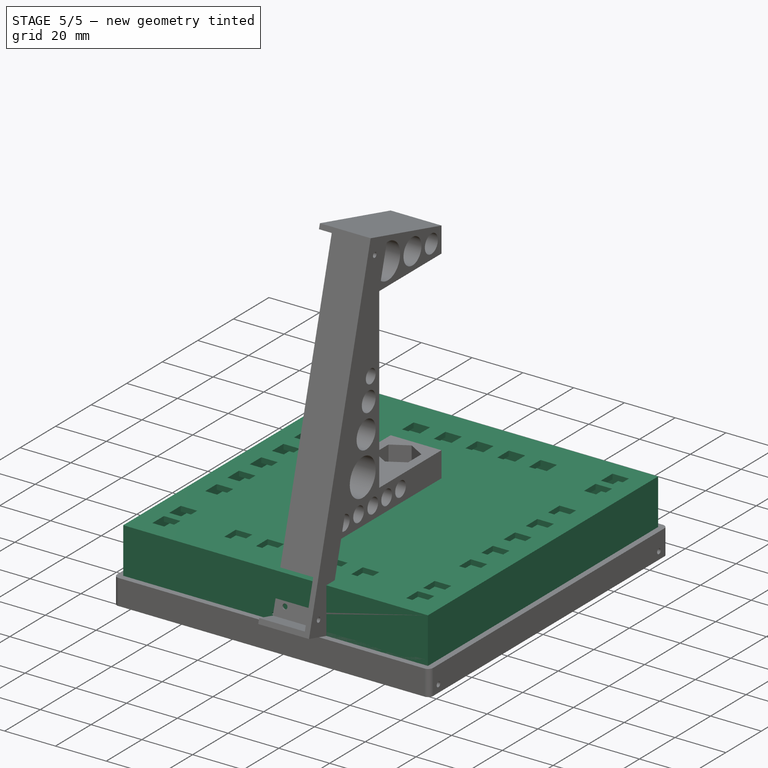
[diagram: stage 5 of 5 — iso view after this stage's code; geometry added in this stage tinted green]
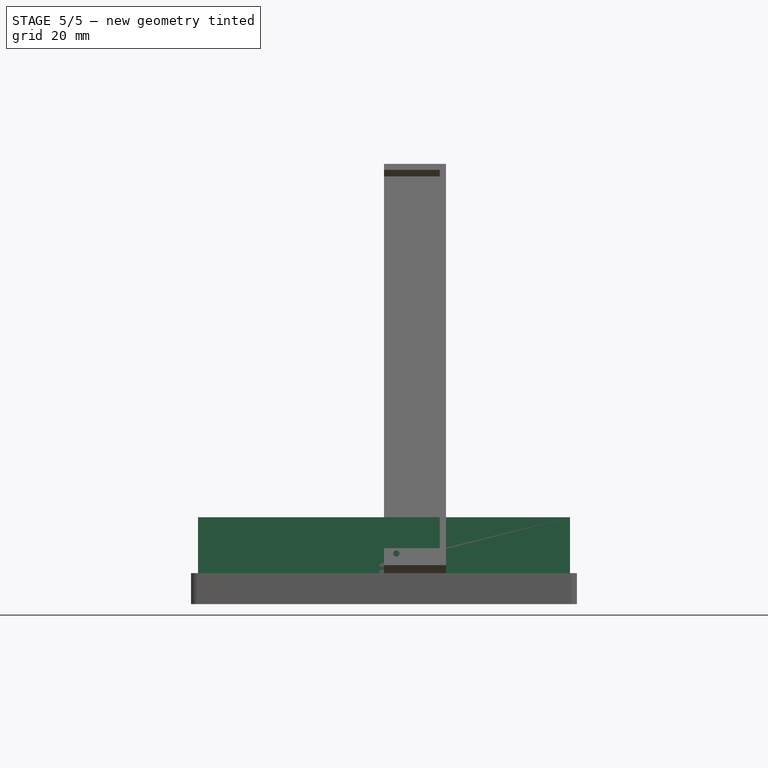
[diagram: stage 5 of 5 — front view after this stage's code; geometry added in this stage tinted green]
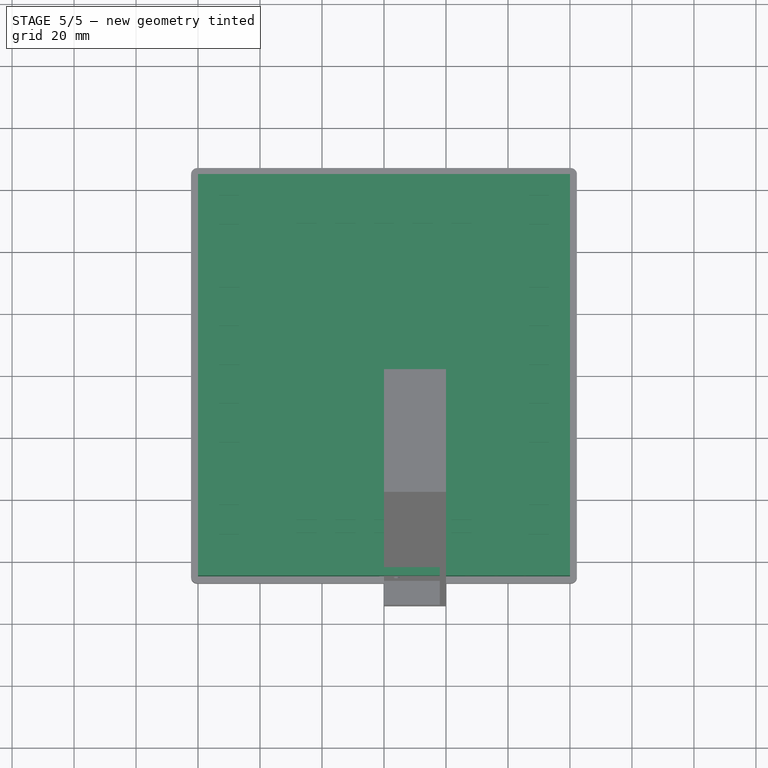
[diagram: stage 5 of 5 — top view after this stage's code; geometry added in this stage tinted green]
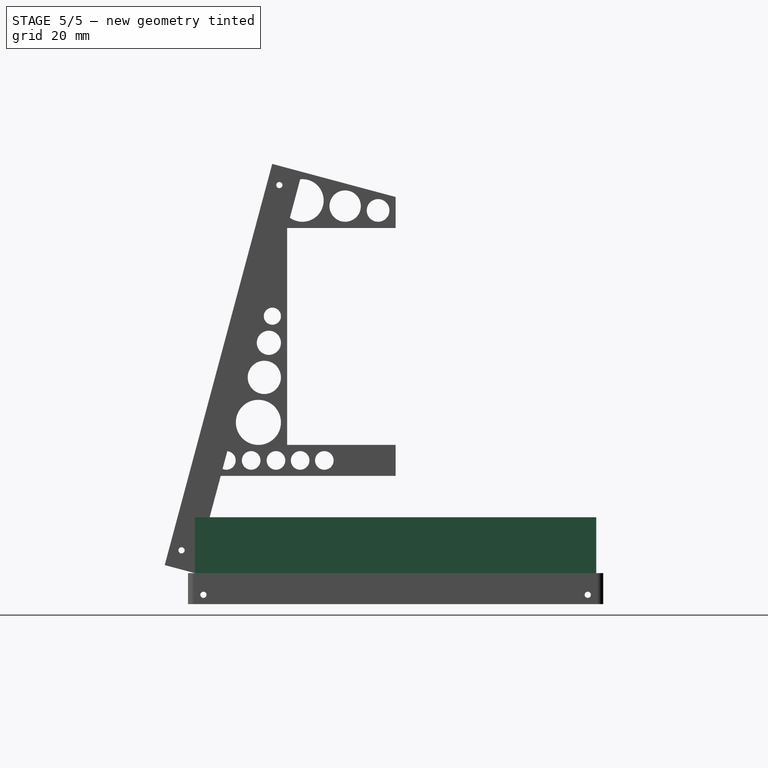
[diagram: stage 5 of 5 — right view after this stage's code; geometry added in this stage tinted green]
FEATURE [Spreadsheet::Sheet] Spreadsheet
  cells = A1=Tolerance; B1(Tolerance)=0.25; A2=Thickness; B2(Thickness)=2; A3=Width; B3(Width)=120; A4=Height; B4(Height)=20; A5=ButtonWidth; B5(ButtonWidth)=6; A6=WireWidth; B6(WireWidth)=3; A7=TableWidth; B7(TableWidth)=70
FEATURE [Sketcher::SketchObject] Sketch  label="Base.Pad.Sketch"
  FullyConstrained = true
  MapMode = 5
  Support = -> [XY_Plane]
  sketch-geometry (183):
    g0: LineSegment StartX=-50 StartY=12.5 StartZ=0 EndX=-50 EndY=0 EndZ=0
    g1: LineSegment StartX=-50 StartY=25 StartZ=0 EndX=-50 EndY=12.5 EndZ=0
    g2: LineSegment StartX=-50 StartY=0 StartZ=0 EndX=-50 EndY=-12.5 EndZ=0
    g3: LineSegment StartX=-50 StartY=-12.5 StartZ=0 EndX=-50 EndY=-25 EndZ=0
    g4: LineSegment StartX=50 StartY=12.5 StartZ=0 EndX=50 EndY=0 EndZ=0
    g5: LineSegment StartX=50 StartY=25 StartZ=0 EndX=50 EndY=12.5 EndZ=0
    g6: LineSegment StartX=50 StartY=0 StartZ=0 EndX=50 EndY=-12.5 EndZ=0
    g7: LineSegment StartX=50 StartY=-12.5 StartZ=0 EndX=50 EndY=-25 EndZ=0
    g8: LineSegment StartX=0 StartY=-50 StartZ=0 EndX=12.5 EndY=-50 EndZ=0
    g9: LineSegment StartX=12.5 StartY=-50 StartZ=0 EndX=25 EndY=-50 EndZ=0
    g10: LineSegment StartX=-12.5 StartY=-50 StartZ=0 EndX=0 EndY=-50 EndZ=0
    g11: LineSegment StartX=-25 StartY=-50 StartZ=0 EndX=-12.5 EndY=-50 EndZ=0
    g12: LineSegment StartX=-12.5 StartY=50 StartZ=0 EndX=0 EndY=50 EndZ=0
    g13: LineSegment StartX=0 StartY=50 StartZ=0 EndX=12.5 EndY=50 EndZ=0
    g14: LineSegment StartX=-25 StartY=50 StartZ=0 EndX=-12.5 EndY=50 EndZ=0
    g15: LineSegment StartX=12.5 StartY=50 StartZ=0 EndX=25 EndY=50 EndZ=0
    g16: LineSegment StartX=-50 StartY=25 StartZ=0 EndX=-50 EndY=45.25 EndZ=0
    g17: LineSegment StartX=-50 StartY=45.25 StartZ=0 EndX=-50 EndY=54.75 EndZ=0
    g18: LineSegment StartX=-25 StartY=50 StartZ=0 EndX=-50 EndY=50 EndZ=0
    g19: LineSegment StartX=25 StartY=50 StartZ=0 EndX=50 EndY=50 EndZ=0
    g20: LineSegment StartX=50 StartY=25 StartZ=0 EndX=50 EndY=45.25 EndZ=0
    g21: LineSegment StartX=50 StartY=45.25 StartZ=0 EndX=50 EndY=54.75 EndZ=0
    g22: LineSegment StartX=50 StartY=-25 StartZ=0 EndX=50 EndY=-45.25 EndZ=0
    g23: LineSegment StartX=50 StartY=-45.25 StartZ=0 EndX=50 EndY=-54.75 EndZ=0
    g24: LineSegment StartX=-50 StartY=-25 StartZ=0 EndX=-50 EndY=-45.25 EndZ=0
    g25: LineSegment StartX=-50 StartY=-45.25 StartZ=0 EndX=-50 EndY=-54.75 EndZ=0
    g26: LineSegment StartX=-25 StartY=-50 StartZ=0 EndX=-50 EndY=-50 EndZ=0
    g27: LineSegment StartX=25 StartY=-50 StartZ=0 EndX=50 EndY=-50 EndZ=0
    g28: GeomPoint X=-50 Y=-12.5 Z=0
    g29: LineSegment StartX=-53.25 StartY=58 StartZ=0 EndX=-53.25 EndY=51.5 EndZ=0
    g30: LineSegment StartX=-53.25 StartY=51.5 StartZ=0 EndX=-46.75 EndY=51.5 EndZ=0
    g31: LineSegment StartX=-46.75 StartY=51.5 StartZ=0 EndX=-46.75 EndY=58 EndZ=0
    g32: LineSegment StartX=-46.75 StartY=58 StartZ=0 EndX=-53.25 EndY=58 EndZ=0
    g33: GeomPoint X=-50 Y=54.75 Z=0
    g34: LineSegment StartX=-53.25 StartY=48.5 StartZ=0 EndX=-53.25 EndY=42 EndZ=0
    g35: LineSegment StartX=-53.25 StartY=42 StartZ=0 EndX=-46.75 EndY=42 EndZ=0
    g36: LineSegment StartX=-46.75 StartY=42 StartZ=0 EndX=-46.75 EndY=48.5 EndZ=0
    g37: LineSegment StartX=-46.75 StartY=48.5 StartZ=0 EndX=-53.25 EndY=48.5 EndZ=0
    g38: GeomPoint X=-50 Y=45.25 Z=0
    g39: LineSegment StartX=-53.25 StartY=28.25 StartZ=0 EndX=-53.25 EndY=21.75 EndZ=0
    g40: LineSegment StartX=-53.25 StartY=21.75 StartZ=0 EndX=-46.75 EndY=21.75 EndZ=0
    g41: LineSegment StartX=-46.75 StartY=21.75 StartZ=0 EndX=-46.75 EndY=28.25 EndZ=0
    g42: LineSegment StartX=-46.75 StartY=28.25 StartZ=0 EndX=-53.25 EndY=28.25 EndZ=0
    g43: GeomPoint X=-50 Y=25 Z=0
    g44: LineSegment StartX=-53.25 StartY=15.75 StartZ=0 EndX=-53.25 EndY=9.25 EndZ=0
    g45: LineSegment StartX=-53.25 StartY=9.25 StartZ=0 EndX=-46.75 EndY=9.25 EndZ=0
    g46: LineSegment StartX=-46.75 StartY=9.25 StartZ=0 EndX=-46.75 EndY=15.75 EndZ=0
    g47: LineSegment StartX=-46.75 StartY=15.75 StartZ=0 EndX=-53.25 EndY=15.75 EndZ=0
    g48: GeomPoint X=-50 Y=12.5 Z=0
    g49: LineSegment StartX=-53.25 StartY=3.25 StartZ=0 EndX=-53.25 EndY=-3.25 EndZ=0
    g50: LineSegment StartX=-53.25 StartY=-3.25 StartZ=0 EndX=-46.75 EndY=-3.25 EndZ=0
    g51: LineSegment StartX=-46.75 StartY=-3.25 StartZ=0 EndX=-46.75 EndY=3.25 EndZ=0
    g52: LineSegment StartX=-46.75 StartY=3.25 StartZ=0 EndX=-53.25 EndY=3.25 EndZ=0
    g53: GeomPoint X=-50 Y=0 Z=0
    g54: LineSegment StartX=-53.25 StartY=-9.25 StartZ=0 EndX=-53.25 EndY=-15.75 EndZ=0
    g55: LineSegment StartX=-53.25 StartY=-15.75 StartZ=0 EndX=-46.75 EndY=-15.75 EndZ=0
    g56: LineSegment StartX=-46.75 StartY=-15.75 StartZ=0 EndX=-46.75 EndY=-9.25 EndZ=0
    g57: LineSegment StartX=-46.75 StartY=-9.25 StartZ=0 EndX=-53.25 EndY=-9.25 EndZ=0
    g58: GeomPoint X=-50 Y=-12.5 Z=0
    g59: LineSegment StartX=-53.25 StartY=-21.75 StartZ=0 EndX=-53.25 EndY=-28.25 EndZ=0
    g60: LineSegment StartX=-53.25 StartY=-28.25 StartZ=0 EndX=-46.75 EndY=-28.25 EndZ=0
    g61: LineSegment StartX=-46.75 StartY=-28.25 StartZ=0 EndX=-46.75 EndY=-21.75 EndZ=0
    g62: LineSegment StartX=-46.75 StartY=-21.75 StartZ=0 EndX=-53.25 EndY=-21.75 EndZ=0
    g63: GeomPoint X=-50 Y=-25 Z=0
    g64: LineSegment StartX=-53.25 StartY=-42 StartZ=0 EndX=-53.25 EndY=-48.5 EndZ=0
    g65: LineSegment StartX=-53.25 StartY=-48.5 StartZ=0 EndX=-46.75 EndY=-48.5 EndZ=0
    g66: LineSegment StartX=-46.75 StartY=-48.5 StartZ=0 EndX=-46.75 EndY=-42 EndZ=0
    g67: LineSegment StartX=-46.75 StartY=-42 StartZ=0 EndX=-53.25 EndY=-42 EndZ=0
    g68: GeomPoint X=-50 Y=-45.25 Z=0
    g69: LineSegment StartX=-53.25 StartY=-51.5 StartZ=0 EndX=-53.25 EndY=-58 EndZ=0
    g70: LineSegment StartX=-53.25 StartY=-58 StartZ=0 EndX=-46.75 EndY=-58 EndZ=0
    g71: LineSegment StartX=-46.75 StartY=-58 StartZ=0 EndX=-46.75 EndY=-51.5 EndZ=0
    g72: LineSegment StartX=-46.75 StartY=-51.5 StartZ=0 EndX=-53.25 EndY=-51.5 EndZ=0
    g73: GeomPoint X=-50 Y=-54.75 Z=0
    g74: LineSegment StartX=-28.25 StartY=-46.75 StartZ=0 EndX=-28.25 EndY=-53.25 EndZ=0
    g75: LineSegment StartX=-28.25 StartY=-53.25 StartZ=0 EndX=-21.75 EndY=-53.25 EndZ=0
    g76: LineSegment StartX=-21.75 StartY=-53.25 StartZ=0 EndX=-21.75 EndY=-46.75 EndZ=0
    g77: LineSegment StartX=-21.75 StartY=-46.75 StartZ=0 EndX=-28.25 EndY=-46.75 EndZ=0
    g78: GeomPoint X=-25 Y=-50 Z=0
    g79: LineSegment StartX=-15.75 StartY=-46.75 StartZ=0 EndX=-15.75 EndY=-53.25 EndZ=0
    g80: LineSegment StartX=-15.75 StartY=-53.25 StartZ=0 EndX=-9.25 EndY=-53.25 EndZ=0
    g81: LineSegment StartX=-9.25 StartY=-53.25 StartZ=0 EndX=-9.25 EndY=-46.75 EndZ=0
    g82: LineSegment StartX=-9.25 StartY=-46.75 StartZ=0 EndX=-15.75 EndY=-46.75 EndZ=0
    g83: GeomPoint X=-12.5 Y=-50 Z=0
    g84: LineSegment StartX=-3.25 StartY=-46.75 StartZ=0 EndX=-3.25 EndY=-53.25 EndZ=0
    g85: LineSegment StartX=-3.25 StartY=-53.25 StartZ=0 EndX=3.25 EndY=-53.25 EndZ=0
    g86: LineSegment StartX=3.25 StartY=-53.25 StartZ=0 EndX=3.25 EndY=-46.75 EndZ=0
    g87: LineSegment StartX=3.25 StartY=-46.75 StartZ=0 EndX=-3.25 EndY=-46.75 EndZ=0
    g88: GeomPoint X=0 Y=-50 Z=0
    g89: LineSegment StartX=9.25 StartY=-46.75 StartZ=0 EndX=9.25 EndY=-53.25 EndZ=0
    g90: LineSegment StartX=9.25 StartY=-53.25 StartZ=0 EndX=15.75 EndY=-53.25 EndZ=0
    g91: LineSegment StartX=15.75 StartY=-53.25 StartZ=0 EndX=15.75 EndY=-46.75 EndZ=0
    g92: LineSegment StartX=15.75 StartY=-46.75 StartZ=0 EndX=9.25 EndY=-46.75 EndZ=0
    g93: GeomPoint X=12.5 Y=-50 Z=0
    g94: LineSegment StartX=21.75 StartY=-46.75 StartZ=0 EndX=21.75 EndY=-53.25 EndZ=0
    g95: LineSegment StartX=21.75 StartY=-53.25 StartZ=0 EndX=28.25 EndY=-53.25 EndZ=0
    g96: LineSegment StartX=28.25 StartY=-53.25 StartZ=0 EndX=28.25 EndY=-46.75 EndZ=0
    g97: LineSegment StartX=28.25 StartY=-46.75 StartZ=0 EndX=21.75 EndY=-46.75 EndZ=0
    g98: GeomPoint X=25 Y=-50 Z=0
    g99: LineSegment StartX=46.75 StartY=-51.5 StartZ=0 EndX=46.75 EndY=-58 EndZ=0
    g100: LineSegment StartX=46.75 StartY=-58 StartZ=0 EndX=53.25 EndY=-58 EndZ=0
    g101: LineSegment StartX=53.25 StartY=-58 StartZ=0 EndX=53.25 EndY=-51.5 EndZ=0
    g102: LineSegment StartX=53.25 StartY=-51.5 StartZ=0 EndX=46.75 EndY=-51.5 EndZ=0
    g103: GeomPoint X=50 Y=-54.75 Z=0
    g104: LineSegment StartX=46.75 StartY=-42 StartZ=0 EndX=46.75 EndY=-48.5 EndZ=0
    g105: LineSegment StartX=46.75 StartY=-48.5 StartZ=0 EndX=53.25 EndY=-48.5 EndZ=0
    g106: LineSegment StartX=53.25 StartY=-48.5 StartZ=0 EndX=53.25 EndY=-42 EndZ=0
    g107: LineSegment StartX=53.25 StartY=-42 StartZ=0 EndX=46.75 EndY=-42 EndZ=0
    g108: GeomPoint X=50 Y=-45.25 Z=0
    g109: LineSegment StartX=46.75 StartY=-21.75 StartZ=0 EndX=46.75 EndY=-28.25 EndZ=0
    g110: LineSegment StartX=46.75 StartY=-28.25 StartZ=0 EndX=53.25 EndY=-28.25 EndZ=0
    g111: LineSegment StartX=53.25 StartY=-28.25 StartZ=0 EndX=53.25 EndY=-21.75 EndZ=0
    g112: LineSegment StartX=53.25 StartY=-21.75 StartZ=0 EndX=46.75 EndY=-21.75 EndZ=0
    g113: GeomPoint X=50 Y=-25 Z=0
    g114: LineSegment StartX=46.75 StartY=-9.25 StartZ=0 EndX=46.75 EndY=-15.75 EndZ=0
    g115: LineSegment StartX=46.75 StartY=-15.75 StartZ=0 EndX=53.25 EndY=-15.75 EndZ=0
    g116: LineSegment StartX=53.25 StartY=-15.75 StartZ=0 EndX=53.25 EndY=-9.25 EndZ=0
    g117: LineSegment StartX=53.25 StartY=-9.25 StartZ=0 EndX=46.75 EndY=-9.25 EndZ=0
    g118: GeomPoint X=50 Y=-12.5 Z=0
    g119: LineSegment StartX=46.75 StartY=3.25 StartZ=0 EndX=46.75 EndY=-3.25 EndZ=0
    g120: LineSegment StartX=46.75 StartY=-3.25 StartZ=0 EndX=53.25 EndY=-3.25 EndZ=0
    g121: LineSegment StartX=53.25 StartY=-3.25 StartZ=0 EndX=53.25 EndY=3.25 EndZ=0
    g122: LineSegment StartX=53.25 StartY=3.25 StartZ=0 EndX=46.75 EndY=3.25 EndZ=0
    g123: GeomPoint X=50 Y=0 Z=0
    g124: LineSegment StartX=46.75 StartY=15.75 StartZ=0 EndX=46.75 EndY=9.25 EndZ=0
    g125: LineSegment StartX=46.75 StartY=9.25 StartZ=0 EndX=53.25 EndY=9.25 EndZ=0
    g126: LineSegment StartX=53.25 StartY=9.25 StartZ=0 EndX=53.25 EndY=15.75 EndZ=0
    g127: LineSegment StartX=53.25 StartY=15.75 StartZ=0 EndX=46.75 EndY=15.75 EndZ=0
    g128: GeomPoint X=50 Y=12.5 Z=0
    g129: LineSegment StartX=46.75 StartY=28.25 StartZ=0 EndX=46.75 EndY=21.75 EndZ=0
    g130: LineSegment StartX=46.75 StartY=21.75 StartZ=0 EndX=53.25 EndY=21.75 EndZ=0
    g131: LineSegment StartX=53.25 StartY=21.75 StartZ=0 EndX=53.25 EndY=28.25 EndZ=0
    g132: LineSegment StartX=53.25 StartY=28.25 StartZ=0 EndX=46.75 EndY=28.25 EndZ=0
    g133: GeomPoint X=50 Y=25 Z=0
    g134: LineSegment StartX=46.75 StartY=48.5 StartZ=0 EndX=46.75 EndY=42 EndZ=0
    g135: LineSegment StartX=46.75 StartY=42 StartZ=0 EndX=53.25 EndY=42 EndZ=0
    g136: LineSegment StartX=53.25 StartY=42 StartZ=0 EndX=53.25 EndY=48.5 EndZ=0
    g137: LineSegment StartX=53.25 StartY=48.5 StartZ=0 EndX=46.75 EndY=48.5 EndZ=0
    g138: GeomPoint X=50 Y=45.25 Z=0
    g139: LineSegment StartX=46.75 StartY=58 StartZ=0 EndX=46.75 EndY=51.5 EndZ=0
    g140: LineSegment StartX=46.75 StartY=51.5 StartZ=0 EndX=53.25 EndY=51.5 EndZ=0
    g141: LineSegment StartX=53.25 StartY=51.5 StartZ=0 EndX=53.25 EndY=58 EndZ=0
    g142: LineSegment StartX=53.25 StartY=58 StartZ=0 EndX=46.75 EndY=58 EndZ=0
    g143: GeomPoint X=50 Y=54.75 Z=0
    g144: LineSegment StartX=21.75 StartY=53.25 StartZ=0 EndX=21.75 EndY=46.75 EndZ=0
    g145: LineSegment StartX=21.75 StartY=46.75 StartZ=0 EndX=28.25 EndY=46.75 EndZ=0
    g146: LineSegment StartX=28.25 StartY=46.75 StartZ=0 EndX=28.25 EndY=53.25 EndZ=0
    g147: LineSegment StartX=28.25 StartY=53.25 StartZ=0 EndX=21.75 EndY=53.25 EndZ=0
    g148: GeomPoint X=25 Y=50 Z=0
    g149: LineSegment StartX=9.25 StartY=53.25 StartZ=0 EndX=9.25 EndY=46.75 EndZ=0
    g150: LineSegment StartX=9.25 StartY=46.75 StartZ=0 EndX=15.75 EndY=46.75 EndZ=0
    g151: LineSegment StartX=15.75 StartY=46.75 StartZ=0 EndX=15.75 EndY=53.25 EndZ=0
    g152: LineSegment StartX=15.75 StartY=53.25 StartZ=0 EndX=9.25 EndY=53.25 EndZ=0
    g153: GeomPoint X=12.5 Y=50 Z=0
    g154: LineSegment StartX=-3.25 StartY=53.25 StartZ=0 EndX=-3.25 EndY=46.75 EndZ=0
    g155: LineSegment StartX=-3.25 StartY=46.75 StartZ=0 EndX=3.25 EndY=46.75 EndZ=0
    g156: LineSegment StartX=3.25 StartY=46.75 StartZ=0 EndX=3.25 EndY=53.25 EndZ=0
    g157: LineSegment StartX=3.25 StartY=53.25 StartZ=0 EndX=-3.25 EndY=53.25 EndZ=0
    g158: GeomPoint X=0 Y=50 Z=0
    g159: LineSegment StartX=-15.75 StartY=53.25 StartZ=0 EndX=-15.75 EndY=46.75 EndZ=0
    g160: LineSegment StartX=-15.75 StartY=46.75 StartZ=0 EndX=-9.25 EndY=46.75 EndZ=0
    g161: LineSegment StartX=-9.25 StartY=46.75 StartZ=0 EndX=-9.25 EndY=53.25 EndZ=0
    g162: LineSegment StartX=-9.25 StartY=53.25 StartZ=0 EndX=-15.75 EndY=53.25 EndZ=0
    g163: GeomPoint X=-12.5 Y=50 Z=0
    g164: LineSegment StartX=-28.25 StartY=53.25 StartZ=0 EndX=-28.25 EndY=46.75 EndZ=0
    g165: LineSegment StartX=-28.25 StartY=46.75 StartZ=0 EndX=-21.75 EndY=46.75 EndZ=0
    g166: LineSegment StartX=-21.75 StartY=46.75 StartZ=0 EndX=-21.75 EndY=53.25 EndZ=0
    g167: LineSegment StartX=-21.75 StartY=53.25 StartZ=0 EndX=-28.25 EndY=53.25 EndZ=0
    g168: GeomPoint X=-25 Y=50 Z=0
    g169: LineSegment StartX=-60 StartY=-64.75 StartZ=0 EndX=-60 EndY=64.75 EndZ=0
    g170: LineSegment StartX=-60 StartY=64.75 StartZ=0 EndX=60 EndY=64.75 EndZ=0
    g171: LineSegment StartX=60 StartY=64.75 StartZ=0 EndX=60 EndY=-64.75 EndZ=0
    g172: LineSegment StartX=60 StartY=-64.75 StartZ=0 EndX=-60 EndY=-64.75 EndZ=0
    g173: GeomPoint X=0 Y=0 Z=0
    g174: LineSegment StartX=-40 StartY=-40 StartZ=0 EndX=-40 EndY=40 EndZ=0
    g175: LineSegment StartX=-40 StartY=40 StartZ=0 EndX=40 EndY=40 EndZ=0
    g176: LineSegment StartX=40 StartY=40 StartZ=0 EndX=40 EndY=-40 EndZ=0
    g177: LineSegment StartX=40 StartY=-40 StartZ=0 EndX=-40 EndY=-40 EndZ=0
    g178: GeomPoint X=0 Y=0 Z=0
    g179: LineSegment StartX=-53.25 StartY=58 StartZ=0 EndX=-53.25 EndY=64.75 EndZ=0
    g180: LineSegment StartX=-53.25 StartY=58 StartZ=0 EndX=-60 EndY=58 EndZ=0
    g181: LineSegment StartX=-28.25 StartY=46.75 StartZ=0 EndX=-28.25 EndY=40 EndZ=0
    g182: LineSegment StartX=-46.75 StartY=28.25 StartZ=0 EndX=-40 EndY=28.25 EndZ=0
  constraints (460):
    c: Coincident(g0,g2)
    c: Coincident(g1,g0)
    c: Vertical(g0)
    c: Vertical(g1)
    c: Coincident(g2,g3)
    c: Vertical(g2)
    c: Vertical(g3)
    c: Coincident(g4,g6)
    c: Coincident(g5,g4)
    c: Vertical(g4)
    c: Vertical(g5)
    c: Coincident(g6,g7)
    c: Vertical(g6)
    c: Vertical(g7)
    c: Coincident(g10,g8)
    c: Coincident(g8,g9)
    c: Horizontal(g8)
    c: Horizontal(g9)
    c: Coincident(g11,g10)
    c: Horizontal(g10)
    c: Horizontal(g11)
    c: Coincident(g12,g13)
    c: Coincident(g14,g12)
    c: Horizontal(g12)
    c: Coincident(g13,g15)
    c: Horizontal(g13)
    c: Horizontal(g14)
    c: Horizontal(g15)
    c: PointOnObject(g0,g-1)
    c: PointOnObject(g12,g-2)
    c: PointOnObject(g4,g-1)
    c: PointOnObject(g8,g-2)
    c: Equal(g1,g0)
    c: Equal(g0,g2)
    c: Equal(g2,g3)
    c: Equal(g3,g11)
    c: Equal(g11,g10)
    c: Equal(g10,g8)
    c: Equal(g8,g9)
    c: Equal(g9,g7)
    c: Equal(g7,g6)
    c: Equal(g6,g4)
    c: Equal(g4,g5)
    c: Equal(g5,g15)
    c: Equal(g15,g13)
    c: Equal(g13,g12)
    c: Equal(g12,g14)
    c: DistanceY(g1,g1) = 12.5  'ButtonStep'
    c: Coincident(g1,g16)
    c: Vertical(g16)
    c: Coincident(g16,g17)
    c: Vertical(g17)
    c: Coincident(g14,g18)
    c: Horizontal(g18)
    c: Coincident(g15,g19)
    c: Horizontal(g19)
    c: Coincident(g5,g20)
    c: Vertical(g20)
    c: Coincident(g20,g21)
    c: Vertical(g21)
    c: Coincident(g7,g22)
    c: Vertical(g22)
    c: Coincident(g22,g23)
    c: Vertical(g23)
    c: Coincident(g3,g24)
    c: Vertical(g24)
    c: Coincident(g24,g25)
    c: Vertical(g25)
    c: Coincident(g11,g26)
    c: Horizontal(g26)
    c: Coincident(g9,g27)
    c: Horizontal(g27)
    c: Equal(g17,g21)
    c: Equal(g21,g23)
    c: Symmetric(g17,g16,g18)
    c: Symmetric(g21,g20,g19)
    c: Symmetric(g25,g24,g26)
    c: Symmetric(g22,g23,g27)
    c: Equal(g25,g17)
    c: DistanceY(g17,g17) = 9.5
    c: Coincident(g28,g2)
    c: Coincident(g29,g30)
    c: Coincident(g30,g31)
    c: Coincident(g31,g32)
    c: Coincident(g32,g29)
    c: Horizontal(g30)
    c: Horizontal(g32)
    c: Vertical(g29)
    c: Vertical(g31)
    c: Symmetric(g30,g29,g33)
    c: Equal(g29,g32)
    c: DistanceX(g32,g32) = 6.5
    c: Coincident(g34,g35)
    c: Coincident(g35,g36)
    c: Coincident(g36,g37)
    c: Coincident(g37,g34)
    c: Horizontal(g35)
    c: Horizontal(g37)
    c: Vertical(g34)
    c: Vertical(g36)
    c: Symmetric(g35,g34,g38)
    c: Equal(g34,g37)
    c: Equal(g32,g37) = 6.5
    c: Coincident(g38,g16)
    c: Coincident(g39,g40)
    c: Coincident(g40,g41)
    c: Coincident(g41,g42)
    c: Coincident(g42,g39)
    c: Horizontal(g40)
    c: Horizontal(g42)
    c: Vertical(g39)
    c: Vertical(g41)
    c: Symmetric(g40,g39,g43)
    c: Equal(g39,g42)
    c: Equal(g32,g42) = 6.5
    c: Coincident(g43,g1)
    c: Coincident(g44,g45)
    c: Coincident(g45,g46)
    c: Coincident(g46,g47)
    c: Coincident(g47,g44)
    c: Horizontal(g45)
    c: Horizontal(g47)
    c: Vertical(g44)
    c: Vertical(g46)
    c: Symmetric(g45,g44,g48)
    c: Equal(g44,g47)
    c: Equal(g32,g47) = 6.5
    c: Coincident(g48,g0)
    c: Coincident(g49,g50)
    c: Coincident(g50,g51)
    c: Coincident(g51,g52)
    c: Coincident(g52,g49)
    c: Horizontal(g50)
    c: Horizontal(g52)
    c: Vertical(g49)
    c: Vertical(g51)
    c: Symmetric(g50,g49,g53)
    c: Equal(g49,g52)
    c: Equal(g32,g52) = 6.5
    c: Coincident(g53,g0)
    c: Coincident(g54,g55)
    c: Coincident(g55,g56)
    c: Coincident(g56,g57)
    c: Coincident(g57,g54)
    c: Horizontal(g55)
    c: Horizontal(g57)
    c: Vertical(g54)
    c: Vertical(g56)
    c: Symmetric(g55,g54,g58)
    c: Equal(g54,g57)
    c: Equal(g32,g57) = 6.5
    c: Coincident(g58,g2)
    c: Coincident(g59,g60)
    c: Coincident(g60,g61)
    c: Coincident(g61,g62)
    c: Coincident(g62,g59)
    c: Horizontal(g60)
    c: Horizontal(g62)
    c: Vertical(g59)
    c: Vertical(g61)
    c: Symmetric(g60,g59,g63)
    c: Equal(g59,g62)
    c: Equal(g32,g62) = 6.5
    c: Coincident(g63,g3)
    c: Coincident(g64,g65)
    c: Coincident(g65,g66)
    c: Coincident(g66,g67)
    c: Coincident(g67,g64)
    c: Horizontal(g65)
    c: Horizontal(g67)
    c: Vertical(g64)
    c: Vertical(g66)
    c: Symmetric(g65,g64,g68)
    c: Equal(g64,g67)
    c: Equal(g32,g67) = 6.5
    c: Coincident(g68,g24)
    c: Coincident(g69,g70)
    c: Coincident(g70,g71)
    c: Coincident(g71,g72)
    c: Coincident(g72,g69)
    c: Horizontal(g70)
    c: Horizontal(g72)
    c: Vertical(g69)
    c: Vertical(g71)
    c: Symmetric(g70,g69,g73)
    c: Equal(g69,g72)
    c: Equal(g32,g72) = 6.5
    c: Coincident(g73,g25)
    c: Coincident(g74,g75)
    c: Coincident(g75,g76)
    c: Coincident(g76,g77)
    c: Coincident(g77,g74)
    c: Horizontal(g75)
    c: Horizontal(g77)
    c: Vertical(g74)
    c: Vertical(g76)
    c: Symmetric(g75,g74,g78)
    c: Equal(g74,g77)
    c: Equal(g32,g77) = 6.5
    c: Coincident(g78,g11)
    c: Coincident(g79,g80)
    c: Coincident(g80,g81)
    c: Coincident(g81,g82)
    c: Coincident(g82,g79)
    c: Horizontal(g80)
    c: Horizontal(g82)
    c: Vertical(g79)
    c: Vertical(g81)
    c: Symmetric(g80,g79,g83)
    c: Equal(g79,g82)
    c: Equal(g32,g82) = 6.5
    c: Coincident(g83,g10)
    c: Coincident(g84,g85)
    c: Coincident(g85,g86)
    c: Coincident(g86,g87)
    c: Coincident(g87,g84)
    c: Horizontal(g85)
    c: Horizontal(g87)
    c: Vertical(g84)
    c: Vertical(g86)
    c: Symmetric(g85,g84,g88)
    c: Equal(g84,g87)
    c: Equal(g32,g87) = 6.5
    c: Coincident(g8,g88)
    c: Coincident(g89,g90)
    c: Coincident(g90,g91)
    c: Coincident(g91,g92)
    c: Coincident(g92,g89)
    c: Horizontal(g90)
    c: Horizontal(g92)
    c: Vertical(g89)
    c: Vertical(g91)
    c: Symmetric(g90,g89,g93)
    c: Equal(g89,g92)
    c: Equal(g32,g92) = 6.5
    c: Coincident(g8,g93)
    c: Coincident(g94,g95)
    c: Coincident(g95,g96)
    c: Coincident(g96,g97)
    c: Coincident(g97,g94)
    c: Horizontal(g95)
    c: Horizontal(g97)
    c: Vertical(g94)
    c: Vertical(g96)
    c: Symmetric(g95,g94,g98)
    c: Equal(g94,g97)
    c: Equal(g32,g97) = 6.5
    c: Coincident(g9,g98)
    c: Coincident(g99,g100)
    c: Coincident(g100,g101)
    c: Coincident(g101,g102)
    c: Coincident(g102,g99)
    c: Horizontal(g100)
    c: Horizontal(g102)
    c: Vertical(g99)
    c: Vertical(g101)
    c: Symmetric(g100,g99,g103)
    c: Equal(g99,g102)
    c: Equal(g32,g102) = 6.5
    c: Coincident(g23,g103)
    c: Coincident(g104,g105)
    c: Coincident(g105,g106)
    c: Coincident(g106,g107)
    c: Coincident(g107,g104)
    c: Horizontal(g105)
    c: Horizontal(g107)
    c: Vertical(g104)
    c: Vertical(g106)
    c: Symmetric(g105,g104,g108)
    c: Equal(g104,g107)
    c: Equal(g32,g107) = 6.5
    c: Coincident(g108,g22)
    c: Coincident(g109,g110)
    c: Coincident(g110,g111)
    c: Coincident(g111,g112)
    c: Coincident(g112,g109)
    c: Horizontal(g110)
    c: Horizontal(g112)
    c: Vertical(g109)
    c: Vertical(g111)
    c: Symmetric(g110,g109,g113)
    c: Equal(g109,g112)
    c: Equal(g32,g112) = 6.5
    c: Coincident(g113,g7)
    c: Coincident(g114,g115)
    c: Coincident(g115,g116)
    c: Coincident(g116,g117)
    c: Coincident(g117,g114)
    c: Horizontal(g115)
    c: Horizontal(g117)
    c: Vertical(g114)
    c: Vertical(g116)
    c: Symmetric(g115,g114,g118)
    c: Equal(g114,g117)
    c: Equal(g32,g117) = 6.5
    c: Coincident(g118,g6)
    c: Coincident(g119,g120)
    c: Coincident(g120,g121)
    c: Coincident(g121,g122)
    c: Coincident(g122,g119)
    c: Horizontal(g120)
    c: Horizontal(g122)
    c: Vertical(g119)
    c: Vertical(g121)
    c: Symmetric(g120,g119,g123)
    c: Equal(g119,g122)
    c: Equal(g32,g122) = 6.5
    c: Coincident(g123,g4)
    c: Coincident(g124,g125)
    c: Coincident(g125,g126)
    c: Coincident(g126,g127)
    c: Coincident(g127,g124)
    c: Horizontal(g125)
    c: Horizontal(g127)
    c: Vertical(g124)
    c: Vertical(g126)
    c: Symmetric(g125,g124,g128)
    c: Equal(g124,g127)
    c: Equal(g32,g127) = 6.5
    c: Coincident(g128,g4)
    c: Coincident(g129,g130)
    c: Coincident(g130,g131)
    c: Coincident(g131,g132)
    c: Coincident(g132,g129)
    c: Horizontal(g130)
    c: Horizontal(g132)
    c: Vertical(g129)
    c: Vertical(g131)
    c: Symmetric(g130,g129,g133)
    c: Equal(g129,g132)
    c: Equal(g32,g132) = 6.5
    c: Coincident(g133,g5)
    c: Coincident(g134,g135)
    c: Coincident(g135,g136)
    c: Coincident(g136,g137)
    c: Coincident(g137,g134)
    c: Horizontal(g135)
    c: Horizontal(g137)
    c: Vertical(g134)
    c: Vertical(g136)
    c: Symmetric(g135,g134,g138)
    c: Equal(g134,g137)
    c: Equal(g32,g137) = 6.5
    c: Coincident(g138,g20)
    c: Coincident(g139,g140)
    c: Coincident(g140,g141)
    c: Coincident(g141,g142)
    c: Coincident(g142,g139)
    c: Horizontal(g140)
    c: Horizontal(g142)
    c: Vertical(g139)
    c: Vertical(g141)
    c: Symmetric(g140,g139,g143)
    c: Equal(g139,g142)
    c: Equal(g32,g142) = 6.5
    c: Coincident(g143,g21)
    c: Coincident(g144,g145)
    c: Coincident(g145,g146)
    c: Coincident(g146,g147)
    c: Coincident(g147,g144)
    c: Horizontal(g145)
    c: Horizontal(g147)
    c: Vertical(g144)
    c: Vertical(g146)
    c: Symmetric(g145,g144,g148)
    c: Equal(g144,g147)
    c: Equal(g32,g147) = 6.5
    c: Coincident(g148,g15)
    c: Coincident(g149,g150)
    c: Coincident(g150,g151)
    c: Coincident(g151,g152)
    c: Coincident(g152,g149)
    c: Horizontal(g150)
    c: Horizontal(g152)
    c: Vertical(g149)
    c: Vertical(g151)
    c: Symmetric(g150,g149,g153)
    c: Equal(g149,g152)
    c: Equal(g32,g152) = 6.5
    c: Coincident(g153,g13)
    c: Coincident(g154,g155)
    c: Coincident(g155,g156)
    c: Coincident(g156,g157)
    c: Coincident(g157,g154)
    c: Horizontal(g155)
    c: Horizontal(g157)
    c: Vertical(g154)
    c: Vertical(g156)
    c: Symmetric(g155,g154,g158)
    c: Equal(g154,g157)
    c: Equal(g32,g157) = 6.5
    c: Coincident(g158,g12)
    c: Coincident(g159,g160)
    c: Coincident(g160,g161)
    c: Coincident(g161,g162)
    c: Coincident(g162,g159)
    c: Horizontal(g160)
    c: Horizontal(g162)
    c: Vertical(g159)
    c: Vertical(g161)
    c: Symmetric(g160,g159,g163)
    c: Equal(g159,g162)
    c: Equal(g32,g162) = 6.5
    c: Coincident(g163,g12)
    c: Coincident(g164,g165)
    c: Coincident(g165,g166)
    c: Coincident(g166,g167)
    c: Coincident(g167,g164)
    c: Horizontal(g165)
    c: Horizontal(g167)
    c: Vertical(g164)
    c: Vertical(g166)
    c: Symmetric(g165,g164,g168)
    c: Equal(g164,g167)
    c: Equal(g32,g167) = 6.5
    c: Coincident(g168,g14)
    c: Coincident(g33,g17)
    c: Coincident(g169,g170)
    c: Coincident(g170,g171)
    c: Coincident(g171,g172)
    c: Coincident(g172,g169)
    c: Horizontal(g170)
    c: Horizontal(g172)
    c: Vertical(g169)
    c: Vertical(g171)
    c: Symmetric(g170,g169,g173)
    c: Coincident(g173,g-1)
    c: DistanceX(g172,g172) = 120
    c: Coincident(g174,g175)
    c: Coincident(g175,g176)
    c: Coincident(g176,g177)
    c: Coincident(g177,g174)
    c: Horizontal(g175)
    c: Horizontal(g177)
    c: Vertical(g174)
    c: Vertical(g176)
    c: Symmetric(g175,g174,g178)
    c: Coincident(g178,g173)
    c: Equal(g174,g175)
    c: Coincident(g179,g29)
    c: PointOnObject(g179,g170)
    c: Vertical(g179)
    c: Coincident(g180,g29)
    c: PointOnObject(g180,g169)
    c: Horizontal(g180)
    c: Equal(g180,g179)
    c: DistanceX(g180,g180) = 6.75  'ButtonEdgeDistnace'
    c: Symmetric(g35,g104,g173)
    c: Coincident(g181,g164)
    c: PointOnObject(g181,g175)
    c: Vertical(g181)
    c: Coincident(g182,g41)
    c: PointOnObject(g182,g174)
    c: Horizontal(g182)
    c: Equal(g180,g181)
    c: Equal(g181,g182)
    c: DistanceY(g180,g169) = 6.75
    c: DistanceY(g171,g171) = 129.5  'Length'
    c: DistanceX(g0,g173) = 50  'ButtonCenterDistance'
    c: DistanceX(g175,g175) = 80  'MFDScreenWidth'
FEATURE [PartDesign::Pad] Pad  label="Base.Pad"
  Direction = (0,0,1)
  Length = 18
  Length2 = 10
  Profile = -> Sketch
  ReferenceAxis = -> Sketch [N_Axis]
  Type = 0
  expr: Length = Spreadsheet.Height - Spreadsheet.Thickness
FEATURE [Sketcher::SketchObject] Sketch001  label="Base.Pad.Pocket.Sketch"
  FullyConstrained = true
  MapMode = 5
  Placement = pos=(0,0,0) rot=(1,0,0;3.14159rad)
  Support = -> [Pad]
  expr: Constraints[20] = <<Base.Pad.Sketch>>.Constraints.Length
  expr: Constraints[21] = Spreadsheet.Width
  expr: Constraints[22] = Spreadsheet.Thickness
  expr: Constraints[23] = Spreadsheet.Thickness
  sketch-geometry (10):
    g0: LineSegment StartX=-58 StartY=-62.75 StartZ=0 EndX=-58 EndY=62.75 EndZ=0
    g1: LineSegment StartX=-58 StartY=62.75 StartZ=0 EndX=58 EndY=62.75 EndZ=0
    g2: LineSegment StartX=58 StartY=62.75 StartZ=0 EndX=58 EndY=-62.75 EndZ=0
    g3: LineSegment StartX=58 StartY=-62.75 StartZ=0 EndX=-58 EndY=-62.75 EndZ=0
    g4: GeomPoint X=0 Y=0 Z=0
    g5: LineSegment StartX=-60 StartY=-64.75 StartZ=0 EndX=-60 EndY=64.75 EndZ=0
    g6: LineSegment StartX=-60 StartY=64.75 StartZ=0 EndX=60 EndY=64.75 EndZ=0
    g7: LineSegment StartX=60 StartY=64.75 StartZ=0 EndX=60 EndY=-64.75 EndZ=0
    g8: LineSegment StartX=60 StartY=-64.75 StartZ=0 EndX=-60 EndY=-64.75 EndZ=0
    g9: GeomPoint X=0 Y=0 Z=0
  constraints (24):
    c: Coincident(g0,g1)
    c: Coincident(g1,g2)
    c: Coincident(g2,g3)
    c: Coincident(g3,g0)
    c: Horizontal(g1)
    c: Horizontal(g3)
    c: Vertical(g0)
    c: Vertical(g2)
    c: Symmetric(g1,g0,g4)
    c: Coincident(g4,g-1)
    c: Coincident(g5,g6)
    c: Coincident(g6,g7)
    c: Coincident(g7,g8)
    c: Coincident(g8,g5)
    c: Horizontal(g6)
    c: Horizontal(g8)
    c: Vertical(g5)
    c: Vertical(g7)
    c: Symmetric(g6,g5,g9)
    c: Coincident(g9,g4)
    c: DistanceY(g7,g7) = 129.5
    c: DistanceX(g8,g8) = 120
    c: DistanceY(g0,g5) = 2
    c: DistanceX(g5,g0) = 2
FEATURE [PartDesign::Pocket] Pocket  label="Base.Pad.Pocket"
  BaseFeature = -> Pad
  Direction = (0,0,1)
  Length = 16
  Length2 = 5
  Profile = -> Sketch001
  ReferenceAxis = -> Sketch001 [N_Axis]
  Type = 0
  expr: Length = Spreadsheet.Height - 2 * Spreadsheet.Thickness
FEATURE [Sketcher::SketchObject] Sketch002  label="Base.WirePocket.Sketch"
  FullyConstrained = true
  MapMode = 5
  Placement = pos=(0,-64.75,0) rot=(1,0,0;1.5708rad)
  Support = -> [Pocket]
  expr: Constraints[11] = Spreadsheet.WireWidth
  sketch-geometry (5):
    g0: LineSegment StartX=-1.5 StartY=3 StartZ=0 EndX=-1.5 EndY=0 EndZ=0
    g1: LineSegment StartX=-1.5 StartY=0 StartZ=0 EndX=1.5 EndY=0 EndZ=0
    g2: LineSegment StartX=1.5 StartY=0 StartZ=0 EndX=1.5 EndY=3 EndZ=0
    g3: LineSegment StartX=1.5 StartY=3 StartZ=0 EndX=-1.5 EndY=3 EndZ=0
    g4: GeomPoint X=0 Y=1.5 Z=0
  constraints (13):
    c: Coincident(g0,g1)
    c: Coincident(g1,g2)
    c: Coincident(g2,g3)
    c: Coincident(g3,g0)
    c: Horizontal(g1)
    c: Horizontal(g3)
    c: Vertical(g0)
    c: Vertical(g2)
    c: Symmetric(g1,g0,g4)
    c: PointOnObject(g4,g-2)
    c: Equal(g0,g3)
    c: DistanceX(g1,g1) = 3
    c: PointOnObject(g-1,g1)
FEATURE [PartDesign::Pocket] Pocket001  label="Base.WirePocket"
  BaseFeature = -> Pocket
  Direction = (0,1,-2e-16)
  Length = 2
  Length2 = 5
  Profile = -> Sketch002
  ReferenceAxis = -> Sketch002 [N_Axis]
  Type = 0
  expr: Length = Spreadsheet.Thickness
FEATURE [Sketcher::SketchObject] Sketch003  label="Base.ButtonSupports.Pad.Sketch"
  FullyConstrained = true
  MapMode = 5
  Placement = pos=(0,0,16) rot=(1,0,0;3.14159rad)
  Support = -> [Pocket001]
  expr: Constraints[43] = Spreadsheet.Thickness
  expr: Constraints[44] = Sketch.Constraints.ButtonCenterDistance
  expr: Constraints[46] = Sketch.Constraints.ButtonCenterDistance
  sketch-geometry (20):
    g0: LineSegment StartX=51 StartY=-60 StartZ=0 EndX=51 EndY=60 EndZ=0
    g1: LineSegment StartX=51 StartY=60 StartZ=0 EndX=49 EndY=60 EndZ=0
    g2: LineSegment StartX=49 StartY=60 StartZ=0 EndX=49 EndY=-60 EndZ=0
    g3: LineSegment StartX=49 StartY=-60 StartZ=0 EndX=51 EndY=-60 EndZ=0
    g4: GeomPoint X=50 Y=0 Z=0
    g5: LineSegment StartX=-51 StartY=-60 StartZ=0 EndX=-51 EndY=60 EndZ=0
    g6: LineSegment StartX=-51 StartY=60 StartZ=0 EndX=-49 EndY=60 EndZ=0
    g7: LineSegment StartX=-49 StartY=60 StartZ=0 EndX=-49 EndY=-60 EndZ=0
    g8: LineSegment StartX=-49 StartY=-60 StartZ=0 EndX=-51 EndY=-60 EndZ=0
    g9: GeomPoint X=-50 Y=0 Z=0
    g10: LineSegment StartX=-30 StartY=51 StartZ=0 EndX=-30 EndY=49 EndZ=0
    g11: LineSegment StartX=-30 StartY=49 StartZ=0 EndX=30 EndY=49 EndZ=0
    g12: LineSegment StartX=30 StartY=49 StartZ=0 EndX=30 EndY=51 EndZ=0
    g13: LineSegment StartX=30 StartY=51 StartZ=0 EndX=-30 EndY=51 EndZ=0
    g14: GeomPoint X=0 Y=50 Z=0
    g15: LineSegment StartX=-30 StartY=-49 StartZ=0 EndX=-30 EndY=-51 EndZ=0
    g16: LineSegment StartX=-30 StartY=-51 StartZ=0 EndX=30 EndY=-51 EndZ=0
    g17: LineSegment StartX=30 StartY=-51 StartZ=0 EndX=30 EndY=-49 EndZ=0
    g18: LineSegment StartX=30 StartY=-49 StartZ=0 EndX=-30 EndY=-49 EndZ=0
    g19: GeomPoint X=0 Y=-50 Z=0
  constraints (50):
    c: Coincident(g0,g1)
    c: Coincident(g1,g2)
    c: Coincident(g2,g3)
    c: Coincident(g3,g0)
    c: Horizontal(g1)
    c: Horizontal(g3)
    c: Vertical(g0)
    c: Vertical(g2)
    c: Symmetric(g1,g0,g4)
    c: PointOnObject(g4,g-1)
    c: Coincident(g5,g6)
    c: Coincident(g6,g7)
    c: Coincident(g7,g8)
    c: Coincident(g8,g5)
    c: Horizontal(g6)
    c: Horizontal(g8)
    c: Vertical(g5)
    c: Vertical(g7)
    c: Symmetric(g6,g5,g9)
    c: PointOnObject(g9,g-1)
    c: Coincident(g10,g11)
    c: Coincident(g11,g12)
    c: Coincident(g12,g13)
    c: Coincident(g13,g10)
    c: Horizontal(g11)
    c: Horizontal(g13)
    c: Vertical(g10)
    c: Vertical(g12)
    c: Symmetric(g11,g10,g14)
    c: PointOnObject(g14,g-2)
    c: Coincident(g15,g16)
    c: Coincident(g16,g17)
    c: Coincident(g17,g18)
    c: Coincident(g18,g15)
    c: Horizontal(g16)
    c: Horizontal(g18)
    c: Vertical(g15)
    c: Vertical(g17)
    c: Symmetric(g16,g15,g19)
    c: PointOnObject(g19,g-2)
    c: Equal(g6,g10)
    c: Equal(g10,g1)
    c: Equal(g1,g15)
    c: DistanceX(g6,g6) = 2
    c: DistanceX(g9,g-1) = 50
    c: Symmetric(g0,g5,g-1)
    c: DistanceY(g-1,g14) = 50
    c: Symmetric(g10,g16,g-1)
    c: DistanceY(g5,g5) = 120
    c: DistanceX(g13,g13) = 60
FEATURE [PartDesign::Pad] Pad001  label="Base.ButtonSupports.Pad"
  BaseFeature = -> Pocket001
  Direction = (0,0,-1)
  Length = 2
  Length2 = 10
  Profile = -> Sketch003
  ReferenceAxis = -> Sketch003 [N_Axis]
  Type = 0
  expr: Length = Spreadsheet.Thickness
FEATURE [PartDesign::Body] Body  label="Base"
  Group = -> [Sketch,Pad,Sketch001,Pocket,Sketch002,Pocket001,Sketch003,Pad001]
  Origin = -> Origin
  Tip = -> Pad001
FEATURE [Sketcher::SketchObject] Sketch004  label="Cap.Pad.Sketch"
  FullyConstrained = true
  MapMode = 5
  Support = -> [XY_Plane001]
  expr: Constraints[10] = Spreadsheet.Width
  expr: Constraints[11] = <<Base.Pad.Sketch>>.Constraints.Length
  sketch-geometry (5):
    g0: LineSegment StartX=-60 StartY=-64.75 StartZ=0 EndX=-60 EndY=64.75 EndZ=0
    g1: LineSegment StartX=-60 StartY=64.75 StartZ=0 EndX=60 EndY=64.75 EndZ=0
    g2: LineSegment StartX=60 StartY=64.75 StartZ=0 EndX=60 EndY=-64.75 EndZ=0
    g3: LineSegment StartX=60 StartY=-64.75 StartZ=0 EndX=-60 EndY=-64.75 EndZ=0
    g4: GeomPoint X=0 Y=0 Z=0
  constraints (12):
    c: Coincident(g0,g1)
    c: Coincident(g1,g2)
    c: Coincident(g2,g3)
    c: Coincident(g3,g0)
    c: Horizontal(g1)
    c: Horizontal(g3)
    c: Vertical(g0)
    c: Vertical(g2)
    c: Symmetric(g1,g0,g4)
    c: Coincident(g4,g-1)
    c: DistanceX(g3,g3) = 120
    c: DistanceY(g2,g2) = 129.5
FEATURE [PartDesign::Pad] Pad002  label="Cap.Pad"
  Direction = (0,0,1)
  Length = 2
  Length2 = 10
  Profile = -> Sketch004
  ReferenceAxis = -> Sketch004 [N_Axis]
  Type = 0
  expr: Length = Spreadsheet.Thickness
FEATURE [Sketcher::SketchObject] Sketch005  label="Cap.Supports.Pad.Sketch"
  ExternalGeometry = -> [Pad002]
  FullyConstrained = true
  MapMode = 5
  Placement = pos=(0,0,2) rot=(0,0,1;0rad)
  Support = -> [Pad002]
  expr: Constraints[10] = Spreadsheet.Thickness + Spreadsheet.Tolerance
  expr: Constraints[11] = Spreadsheet.Thickness + Spreadsheet.Tolerance
  expr: Constraints[22] = Spreadsheet.Thickness
  expr: Constraints[23] = Spreadsheet.Thickness
  sketch-geometry (10):
    g0: LineSegment StartX=57.75 StartY=-62.5 StartZ=0 EndX=57.75 EndY=62.5 EndZ=0
    g1: LineSegment StartX=57.75 StartY=62.5 StartZ=0 EndX=-57.75 EndY=62.5 EndZ=0
    g2: LineSegment StartX=-57.75 StartY=62.5 StartZ=0 EndX=-57.75 EndY=-62.5 EndZ=0
    g3: LineSegment StartX=-57.75 StartY=-62.5 StartZ=0 EndX=57.75 EndY=-62.5 EndZ=0
    g4: GeomPoint X=0 Y=0 Z=0
    g5: LineSegment StartX=55.75 StartY=-60.5 StartZ=0 EndX=55.75 EndY=60.5 EndZ=0
    g6: LineSegment StartX=55.75 StartY=60.5 StartZ=0 EndX=-55.75 EndY=60.5 EndZ=0
    g7: LineSegment StartX=-55.75 StartY=60.5 StartZ=0 EndX=-55.75 EndY=-60.5 EndZ=0
    g8: LineSegment StartX=-55.75 StartY=-60.5 StartZ=0 EndX=55.75 EndY=-60.5 EndZ=0
    g9: GeomPoint X=0 Y=0 Z=0
  constraints (24):
    c: Coincident(g0,g1)
    c: Coincident(g1,g2)
    c: Coincident(g2,g3)
    c: Coincident(g3,g0)
    c: Horizontal(g1)
    c: Horizontal(g3)
    c: Vertical(g0)
    c: Vertical(g2)
    c: Symmetric(g1,g0,g4)
    c: Coincident(g4,g-1)
    c: DistanceX(g-3,g1) = 2.25
    c: DistanceY(g1,g-3) = 2.25
    c: Coincident(g5,g6)
    c: Coincident(g6,g7)
    c: Coincident(g7,g8)
    c: Coincident(g8,g5)
    c: Horizontal(g6)
    c: Horizontal(g8)
    c: Vertical(g5)
    c: Vertical(g7)
    c: Symmetric(g6,g5,g9)
    c: Coincident(g9,g4)
    c: DistanceY(g6,g1) = 2
    c: DistanceX(g1,g6) = 2
FEATURE [PartDesign::Pad] Pad003  label="Cap.Supports.Pad"
  BaseFeature = -> Pad002
  Direction = (0,0,1)
  Length = 2
  Length2 = 10
  Profile = -> Sketch005
  ReferenceAxis = -> Sketch005 [N_Axis]
  Type = 0
  expr: Length = Spreadsheet.Thickness
FEATURE [Sketcher::SketchObject] Sketch006  label="Cap.Wire.Pocket.Sketch"
  FullyConstrained = true
  MapMode = 5
  Placement = pos=(0,-62.5,0) rot=(1,0,0;1.5708rad)
  Support = -> [Pad003]
  expr: Constraints[10] = Spreadsheet.Thickness
  expr: Constraints[11] = Spreadsheet.WireWidth
  expr: Constraints[12] = Spreadsheet.Thickness
  sketch-geometry (5):
    g0: LineSegment StartX=-1.5 StartY=4 StartZ=0 EndX=-1.5 EndY=2 EndZ=0
    g1: LineSegment StartX=-1.5 StartY=2 StartZ=0 EndX=1.5 EndY=2 EndZ=0
    g2: LineSegment StartX=1.5 StartY=2 StartZ=0 EndX=1.5 EndY=4 EndZ=0
    g3: LineSegment StartX=1.5 StartY=4 StartZ=0 EndX=-1.5 EndY=4 EndZ=0
    g4: GeomPoint X=0 Y=3 Z=0
  constraints (13):
    c: Coincident(g0,g1)
    c: Coincident(g1,g2)
    c: Coincident(g2,g3)
    c: Coincident(g3,g0)
    c: Horizontal(g1)
    c: Horizontal(g3)
    c: Vertical(g0)
    c: Vertical(g2)
    c: Symmetric(g1,g0,g4)
    c: PointOnObject(g4,g-2)
    c: DistanceY(g0,g0) = 2
    c: DistanceX(g3,g3) = 3
    c: DistanceY(g-1,g0) = 2
FEATURE [PartDesign::Pocket] Pocket002  label="Cap.Wire.Pocket"
  BaseFeature = -> Pad003
  Direction = (0,1,-2e-16)
  Length = 2
  Length2 = 5
  Profile = -> Sketch006
  ReferenceAxis = -> Sketch006 [N_Axis]
  Type = 0
  expr: Length = Spreadsheet.Thickness
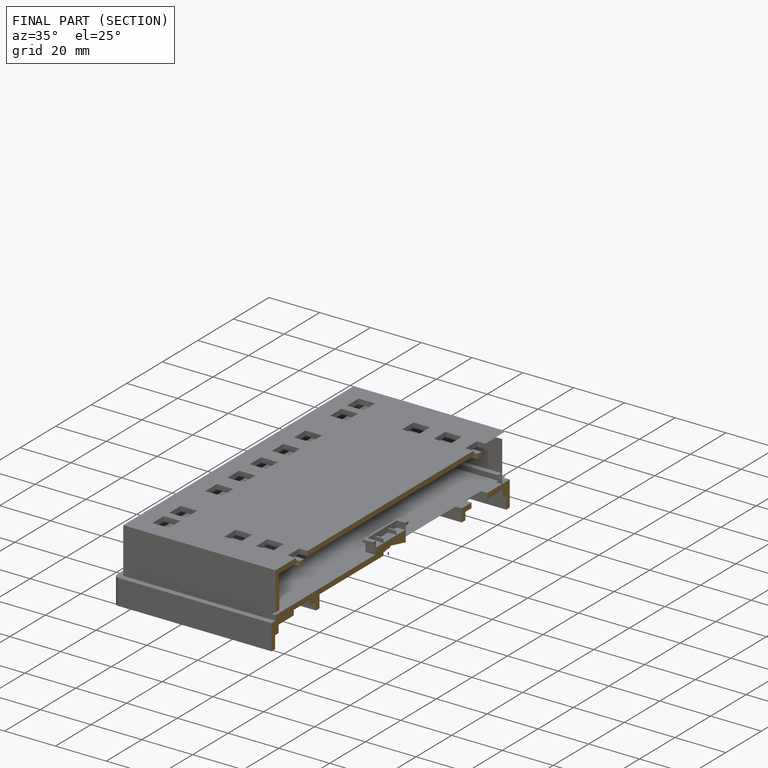
[diagram: finished part — half-section view (interior)]
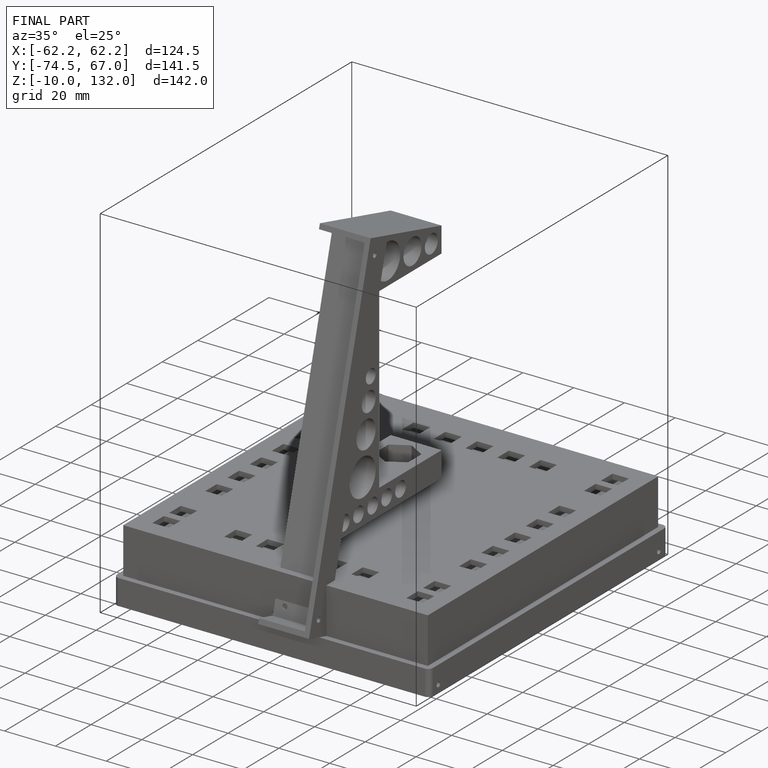
[diagram: finished part — iso view with bounding-box wireframe]
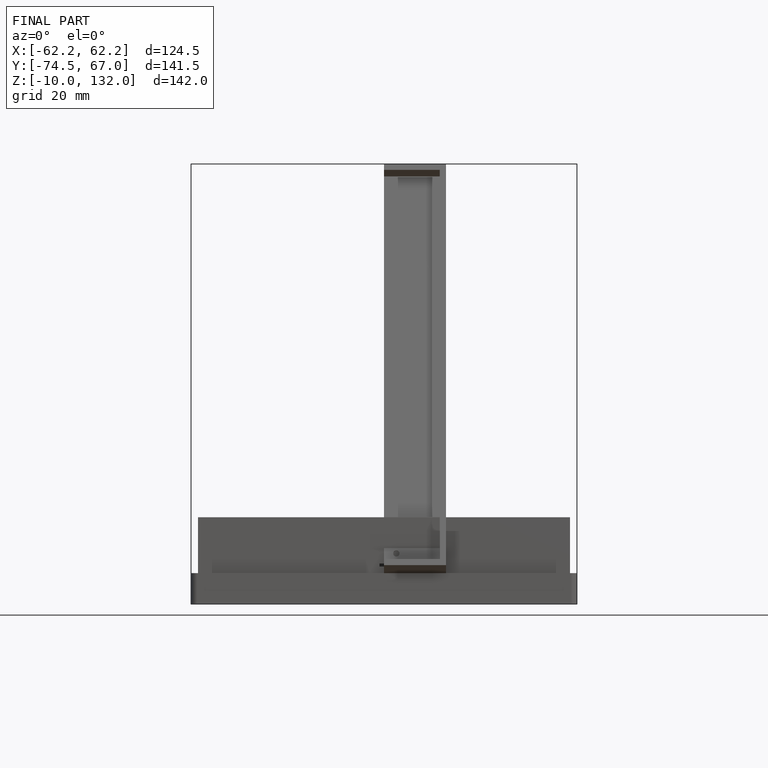
[diagram: finished part — front view with bounding-box wireframe]
